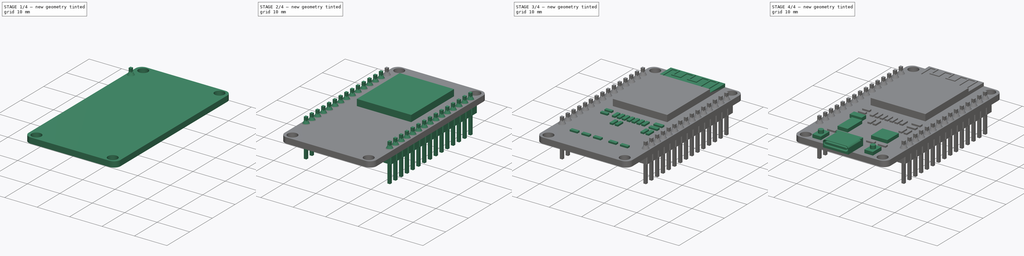
[diagram: build sequence overview — one tinted view per stage of 4, left to right]
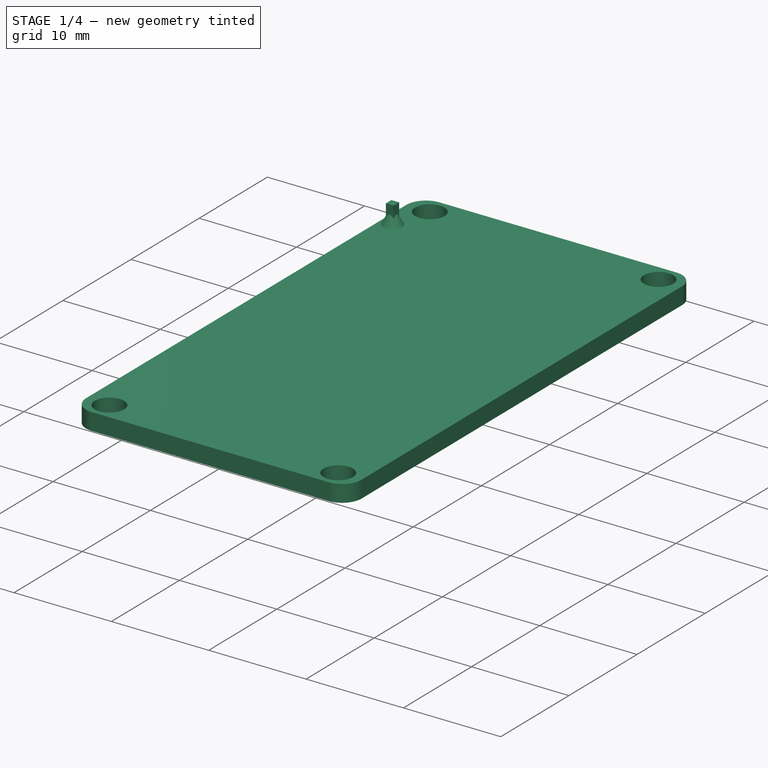
[diagram: stage 1 of 4 — iso view after this stage's code; geometry added in this stage tinted green]
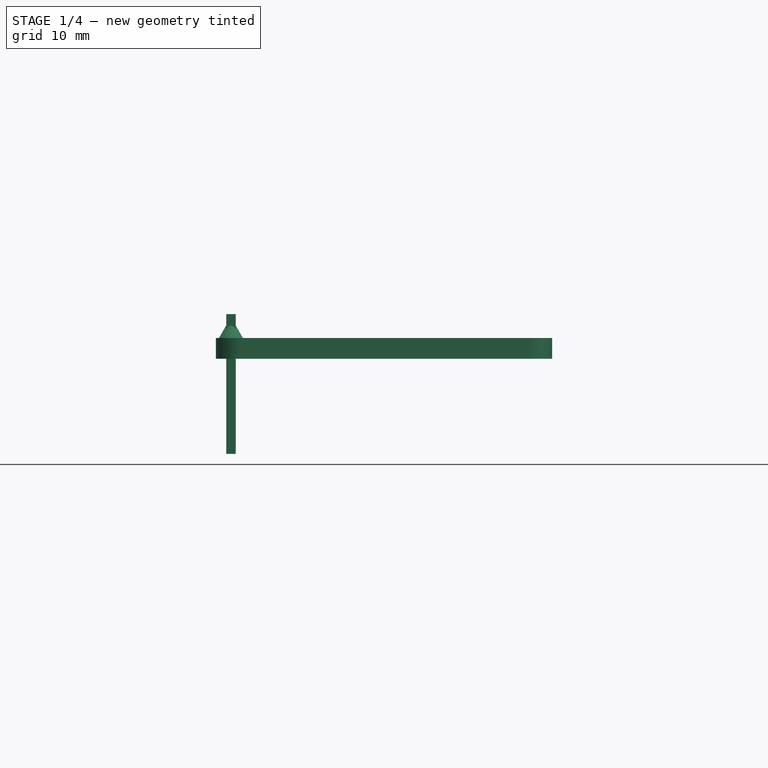
[diagram: stage 1 of 4 — front view after this stage's code; geometry added in this stage tinted green]
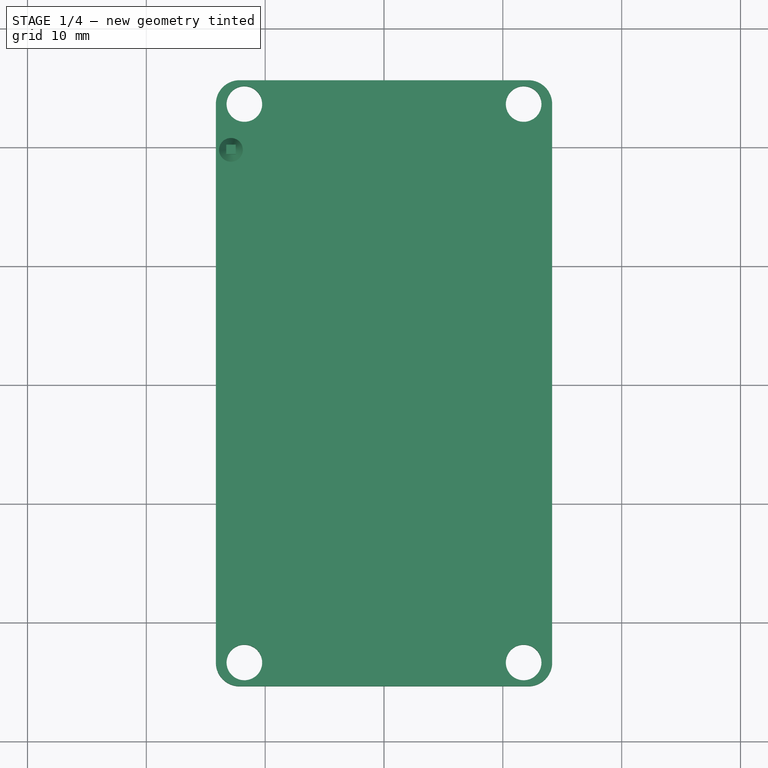
[diagram: stage 1 of 4 — top view after this stage's code; geometry added in this stage tinted green]
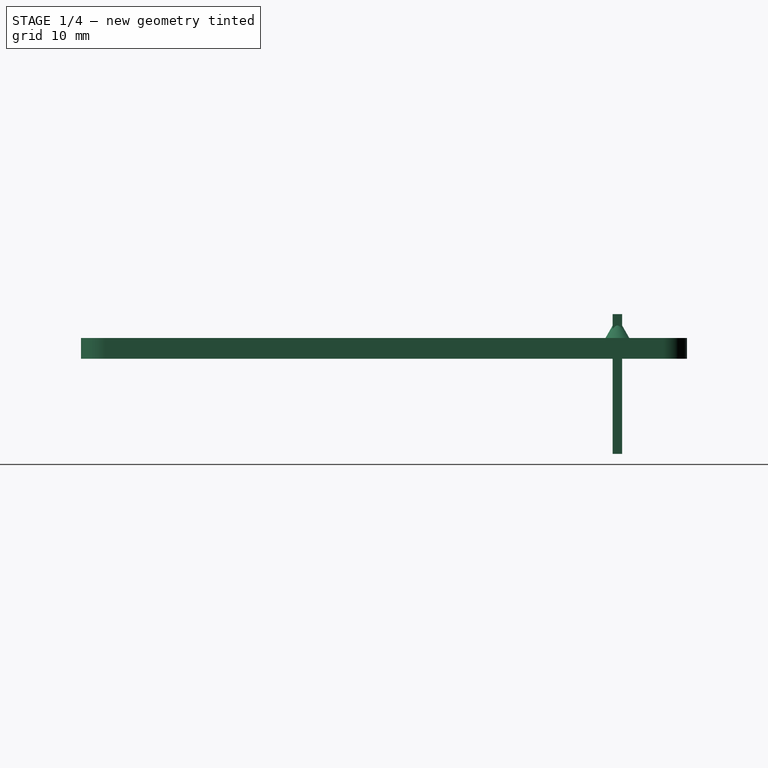
[diagram: stage 1 of 4 — right view after this stage's code; geometry added in this stage tinted green]
FCSTD DOCUMENT  (FreeCAD 1.0R39109 (Git))
Label: esp32
License: All rights reserved
LicenseURL: http://en.wikipedia.org/wiki/All_rights_reserved
objects: Sketcher::SketchObject×14, PartDesign::Pad×10, PartDesign::Pocket×2, Image::ImagePlane×1, PartDesign::Plane×1, PartDesign::Line×1, PartDesign::Revolution×1, PartDesign::LinearPattern×1, PartDesign::Mirrored×1, PartDesign::MultiTransform×1, PartDesign::Body×1
note: 76 computed .brp shape members not serialized (recipe doc carries the construction recipe); baked Part::Feature solids carry a one-line shape summary decoded from their .brp

FEATURE [Sketcher::SketchObject] Sketch
  ArcFitTolerance = 1e-06
  AttachmentSupport = -> [XY_Plane]
  FullyConstrained = true
  MakeInternals = false
  MapMode = 5
  sketch-geometry (10):
    g0: LineSegment StartX=-14.15 StartY=23.5 StartZ=0 EndX=-14.15 EndY=-23.5 EndZ=0
    g1: LineSegment StartX=-12.15 StartY=-25.5 StartZ=0 EndX=12.15 EndY=-25.5 EndZ=0
    g2: LineSegment StartX=14.15 StartY=-23.5 StartZ=0 EndX=14.15 EndY=23.5 EndZ=0
    g3: LineSegment StartX=12.15 StartY=25.5 StartZ=0 EndX=-12.15 EndY=25.5 EndZ=0
    g4: ArcOfCircle CenterX=-12.15 CenterY=23.5 CenterZ=0 NormalX=0 NormalY=0 NormalZ=1 AngleXU=0 Radius=2 StartAngle=1.5708 EndAngle=3.14159
    g5: ArcOfCircle CenterX=-12.15 CenterY=-23.5 CenterZ=0 NormalX=0 NormalY=0 NormalZ=1 AngleXU=0 Radius=2 StartAngle=3.14159 EndAngle=4.71239
    g6: ArcOfCircle CenterX=12.15 CenterY=-23.5 CenterZ=0 NormalX=0 NormalY=0 NormalZ=1 AngleXU=0 Radius=2 StartAngle=4.71239 EndAngle=6.28319
    g7: ArcOfCircle CenterX=12.15 CenterY=23.5 CenterZ=0 NormalX=0 NormalY=0 NormalZ=1 AngleXU=0 Radius=2 StartAngle=0 EndAngle=1.5708
    g8: GeomPoint [constr] X=-14.15 Y=25.5 Z=0
    g9: GeomPoint [constr] X=14.15 Y=-25.5 Z=0
  constraints (23):
    c: Tangent(g0,g4) = -1.5708
    c: Tangent(g0,g5) = -1.5708
    c: Tangent(g1,g5) = -1.5708
    c: Tangent(g1,g6) = -1.5708
    c: Tangent(g2,g6) = -1.5708
    c: Tangent(g2,g7) = -1.5708
    c: Tangent(g3,g7) = -1.5708
    c: Tangent(g3,g4) = -1.5708
    c: Vertical(g0)
    c: Vertical(g2)
    c: Horizontal(g1)
    c: Horizontal(g3)
    c: Equal(g4,g5)
    c: Equal(g5,g6)
    c: Equal(g6,g7)
    c: PointOnObject(g8,g0)
    c: PointOnObject(g8,g3)
    c: PointOnObject(g9,g1)
    c: PointOnObject(g9,g2)
    c: Symmetric(g4,g6,g-1)
    c: DistanceY(g1,g3) = 51
    c: DistanceX(g0,g2) = 28.3
    c: Radius(g7) = 2
FEATURE [PartDesign::Pad] Pad  label="PCBPad"
  Direction = (0,0,1)
  Length = 1.75
  Length2 = 10
  Profile = -> Sketch
  ReferenceAxis = -> Sketch [N_Axis]
  Refine = true
  Suppressed = false
  Type = 0
FEATURE [Image::ImagePlane] Esp32Drawing
  Placement = pos=(2.65,-1.75,0) rot=(0,0,1;0rad)
  XSize = 119.046
  YSize = 54.918
  expr: XSize = 198.41 * 0.6 mm
  expr: YSize = 91.53 * 0.6 mm
FEATURE [Sketcher::SketchObject] Sketch001
  ArcFitTolerance = 1e-06
  AttachmentSupport = -> [Pad]
  FullyConstrained = true
  MakeInternals = false
  MapMode = 5
  Placement = pos=(0,0,1.75) rot=(0,0,1;0rad)
  sketch-geometry (4):
    g0: Circle CenterX=-11.75 CenterY=23.5 CenterZ=0 NormalX=0 NormalY=0 NormalZ=1 AngleXU=0 Radius=1.5
    g1: Circle CenterX=11.75 CenterY=23.5 CenterZ=0 NormalX=0 NormalY=0 NormalZ=1 AngleXU=0 Radius=1.5
    g2: Circle CenterX=-11.75 CenterY=-23.5 CenterZ=0 NormalX=0 NormalY=0 NormalZ=1 AngleXU=0 Radius=1.5
    g3: Circle CenterX=11.75 CenterY=-23.5 CenterZ=0 NormalX=0 NormalY=0 NormalZ=1 AngleXU=0 Radius=1.5
  constraints (10):
    c: Equal(g0,g1)
    c: Equal(g1,g2)
    c: Equal(g2,g3)
    c: Radius(g3) = 1.5
    c: Vertical(g2,g0)
    c: Horizontal(g1,g0)
    c: DistanceX(g2,g-1) = 11.75
    c: DistanceY(g2,g-1) = 23.5
    c: Symmetric(g2,g3,g-2)
    c: Symmetric(g1,g3,g-1)
FEATURE [PartDesign::Pocket] Pocket  label="ScrewPockets"
  BaseFeature = -> Pad
  Direction = (0,0,-1)
  Length = 5
  Length2 = 5
  Profile = -> Sketch001
  ReferenceAxis = -> Sketch001 [N_Axis]
  Refine = true
  Suppressed = false
  Type = 2
FEATURE [Sketcher::SketchObject] Sketch002
  ArcFitTolerance = 1e-06
  AttachmentSupport = -> [Pocket]
  ExternalGeometry = -> [Pocket]
  FullyConstrained = true
  MakeInternals = false
  MapMode = 5
  Placement = pos=(0,0,1.75) rot=(0,0,1;0rad)
  sketch-geometry (26):
    g0: LineSegment [constr] StartX=-14.15 StartY=20.91 StartZ=0 EndX=-14.15 EndY=18.37 EndZ=0
    g1: LineSegment [constr] StartX=-14.15 StartY=18.37 StartZ=0 EndX=-11.61 EndY=18.37 EndZ=0
    g2: LineSegment [constr] StartX=-11.61 StartY=18.37 StartZ=0 EndX=-11.61 EndY=20.91 EndZ=0
    g3: LineSegment [constr] StartX=-11.61 StartY=20.91 StartZ=0 EndX=-14.15 EndY=20.91 EndZ=0
    g4: GeomPoint [constr] X=-12.88 Y=19.64 Z=0
    g5: LineSegment StartX=-13.28 StartY=20.04 StartZ=0 EndX=-13.28 EndY=19.24 EndZ=0
    g6: LineSegment StartX=-13.28 StartY=19.24 StartZ=0 EndX=-12.48 EndY=19.24 EndZ=0
    g7: LineSegment StartX=-12.48 StartY=19.24 StartZ=0 EndX=-12.48 EndY=20.04 EndZ=0
    g8: LineSegment StartX=-12.48 StartY=20.04 StartZ=0 EndX=-13.28 EndY=20.04 EndZ=0
    g9: GeomPoint [constr] X=-12.88 Y=19.64 Z=0
    g10: LineSegment [constr] StartX=-11.61 StartY=25.5 StartZ=0 EndX=-11.61 EndY=20.91 EndZ=0
    g11: LineSegment [constr] StartX=-11.61 StartY=18.37 StartZ=0 EndX=-11.61 EndY=15.83 EndZ=0
    g12: LineSegment [constr] StartX=-11.61 StartY=15.83 StartZ=0 EndX=-11.61 EndY=13.29 EndZ=0
    g13: LineSegment [constr] StartX=-11.61 StartY=13.29 StartZ=0 EndX=-11.61 EndY=10.75 EndZ=0
    g14: LineSegment [constr] StartX=-11.61 StartY=10.75 StartZ=0 EndX=-11.61 EndY=8.21 EndZ=0
    g15: LineSegment [constr] StartX=-11.61 StartY=8.21 StartZ=0 EndX=-11.61 EndY=5.67 EndZ=0
    g16: LineSegment [constr] StartX=-11.61 StartY=5.67 StartZ=0 EndX=-11.61 EndY=3.13 EndZ=0
    g17: LineSegment [constr] StartX=-11.61 StartY=3.13 StartZ=0 EndX=-11.61 EndY=0.59 EndZ=0
    g18: LineSegment [constr] StartX=-11.61 StartY=0.59 StartZ=0 EndX=-11.61 EndY=-1.95 EndZ=0
    g19: LineSegment [constr] StartX=-11.61 StartY=-1.95 StartZ=0 EndX=-11.61 EndY=-4.49 EndZ=0
    g20: LineSegment [constr] StartX=-11.61 StartY=-4.49 StartZ=0 EndX=-11.61 EndY=-7.03 EndZ=0
    g21: LineSegment [constr] StartX=-11.61 StartY=-7.03 StartZ=0 EndX=-11.61 EndY=-9.57 EndZ=0
    g22: LineSegment [constr] StartX=-11.61 StartY=-9.57 StartZ=0 EndX=-11.61 EndY=-12.11 EndZ=0
    g23: LineSegment [constr] StartX=-11.61 StartY=-12.11 StartZ=0 EndX=-11.61 EndY=-14.65 EndZ=0
    g24: LineSegment [constr] StartX=-11.61 StartY=-14.65 StartZ=0 EndX=-11.61 EndY=-17.19 EndZ=0
    g25: LineSegment [constr] StartX=-11.61 StartY=-17.19 StartZ=0 EndX=-11.61 EndY=-19.73 EndZ=0
  constraints (73):
    c: Coincident(g0,g1)
    c: Coincident(g1,g2)
    c: Coincident(g2,g3)
    c: Coincident(g3,g0)
    c: Vertical(g0)
    c: Vertical(g2)
    c: Horizontal(g1)
    c: Horizontal(g3)
    c: Symmetric(g2,g0,g4)
    c: Coincident(g5,g6)
    c: Coincident(g6,g7)
    c: Coincident(g7,g8)
    c: Coincident(g8,g5)
    c: Vertical(g5)
    c: Vertical(g7)
    c: Horizontal(g6)
    c: Horizontal(g8)
    c: Symmetric(g7,g5,g9)
    c: Coincident(g9,g4)
    c: Equal(g7,g8)
    c: Equal(g2,g3)
    c: DistanceY(g2,g2) = 2.54
    c: DistanceY(g7,g7) = 0.8
    c: PointOnObject(g0,g-3)
    c: PointOnObject(g10,g-4)
    c: Coincident(g10,g2)
    c: Vertical(g10)
    c: Coincident(g1,g11)
    c: Coincident(g11,g12)
    c: Vertical(g12)
    c: Coincident(g12,g13)
    c: Vertical(g13)
    c: Coincident(g13,g14)
    c: Vertical(g14)
    c: Coincident(g14,g15)
    c: Coincident(g15,g16)
    c: Vertical(g16)
    c: Coincident(g16,g17)
    c: Vertical(g17)
    c: Coincident(g17,g18)
    c: Vertical(g18)
    c: Coincident(g18,g19)
    c: Vertical(g19)
    c: Coincident(g19,g20)
    c: Vertical(g20)
    c: Coincident(g20,g21)
    c: Coincident(g21,g22)
    c: Coincident(g22,g23)
    c: Coincident(g23,g24)
    c: Vertical(g24)
    c: Coincident(g24,g25)
    c: Vertical(g25)
    c: Vertical(g23)
    c: Vertical(g22)
    c: Vertical(g21)
    c: Vertical(g15)
    c: Vertical(g11)
    c: Equal(g11,g12)
    c: Equal(g12,g13)
    c: Equal(g13,g14)
    c: Equal(g14,g15)
    c: Equal(g15,g16)
    c: Equal(g16,g17)
    c: Equal(g17,g18)
    c: Equal(g18,g19)
    c: Equal(g19,g20)
    c: Equal(g20,g21)
    c: Equal(g21,g22)
    c: Equal(g22,g23)
    c: Equal(g23,g24)
    c: Equal(g24,g25)
    c: Equal(g11,g2)
    c: DistanceY(g10,g10) = 4.59
FEATURE [PartDesign::Pad] Pad001  label="ConnectorPad"
  BaseFeature = -> Pocket
  Direction = (0,0,1)
  Length = 2
  Length2 = 9.75
  Profile = -> Sketch002
  ReferenceAxis = -> Sketch002 [N_Axis]
  Refine = true
  Suppressed = false
  Type = 4
FEATURE [Sketcher::SketchObject] Sketch003
  ArcFitTolerance = 1e-06
  AttachmentSupport = -> [Pad001]
  ExternalGeometry = -> [Pad001]
  FullyConstrained = true
  MakeInternals = false
  MapMode = 5
  Placement = pos=(0,0,3.75) rot=(0,0,1;0rad)
  sketch-geometry (2):
    g0: LineSegment StartX=-13.28 StartY=20.04 StartZ=0 EndX=-12.48 EndY=19.24 EndZ=0
    g1: GeomPoint X=-12.88 Y=19.64 Z=0
  constraints (3):
    c: Coincident(g0,g-4)
    c: Coincident(g0,g-3)
    c: Symmetric(g0,g0,g1)
FEATURE [PartDesign::Plane] DatumPlane  label="SolderPlane"
  AttachmentSupport = -> [XZ_Plane,Sketch003]
  Length = 60
  MapMode = 53
  Placement = pos=(0,19.64,4.4e-15) rot=(1,0,0;1.5708rad)
  ResizeMode = 0
  Width = 60
FEATURE [Sketcher::SketchObject] Sketch004
  ArcFitTolerance = 1e-06
  AttachmentSupport = -> [DatumPlane]
  ExternalGeometry = -> [Pad001]
  FullyConstrained = true
  MakeInternals = false
  MapMode = 5
  Placement = pos=(0,19.64,4.4e-15) rot=(1,0,0;1.5708rad)
  sketch-geometry (4):
    g0: LineSegment StartX=-11.88 StartY=1.75 StartZ=0 EndX=-12.88 EndY=1.75 EndZ=0
    g1: LineSegment StartX=-11.88 StartY=1.75 StartZ=0 EndX=-12.88 EndY=3.5 EndZ=0
    g2: LineSegment StartX=-12.88 StartY=3.5 StartZ=0 EndX=-12.88 EndY=1.75 EndZ=0
    g3: GeomPoint X=-12.88 Y=3.75 Z=0
  constraints (10):
    c: Horizontal(g0)
    c: Coincident(g0,g1)
    c: Coincident(g1,g2)
    c: Coincident(g2,g0)
    c: Vertical(g2)
    c: Horizontal(g0,g-4)
    c: Symmetric(g-3,g-3,g3)
    c: Vertical(g3,g1)
    c: DistanceY(g1,g3) = 0.25
    c: DistanceX(g0,g0) = 1
FEATURE [PartDesign::Line] DatumLine  label="SolderRevAxis"
  AttacherType = Attacher::AttachEngineLine
  AttachmentSupport = -> [Sketch004]
  Length = 20
  MapMode = 29
  Placement = pos=(-12.88,19.64,4.4e-15) rot=(0,1,0;3.14159rad)
  ResizeMode = 0
FEATURE [PartDesign::Revolution] Revolution  label="SolderRevolution"
  Angle = 360
  Angle2 = 60
  Axis = (0,0,-1)
  Base = (-12.88,19.64,0)
  BaseFeature = -> Pad001
  Profile = -> Sketch004
  ReferenceAxis = -> DatumLine
  Refine = true
  Suppressed = false
  Type = 0
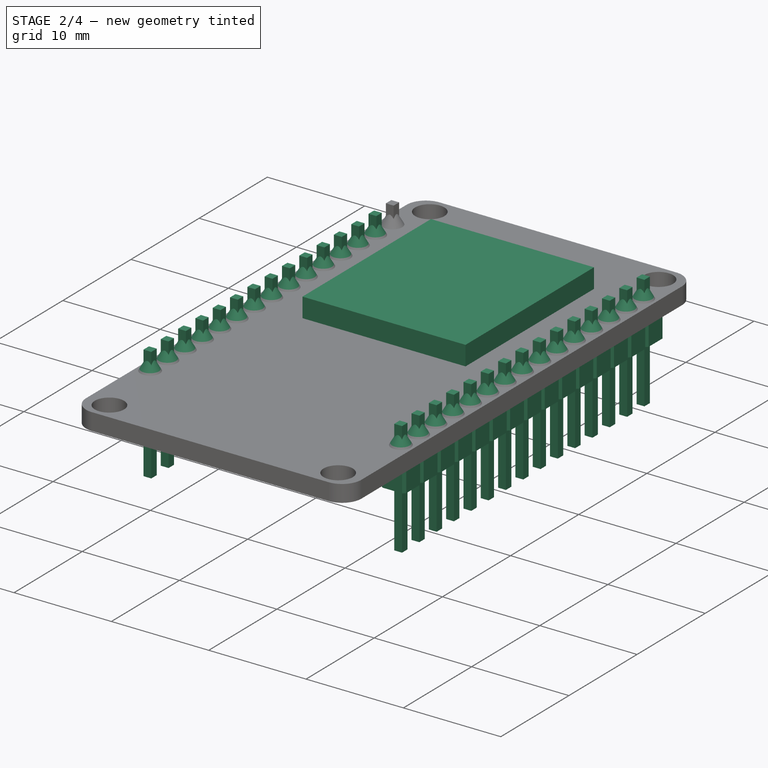
[diagram: stage 2 of 4 — iso view after this stage's code; geometry added in this stage tinted green]
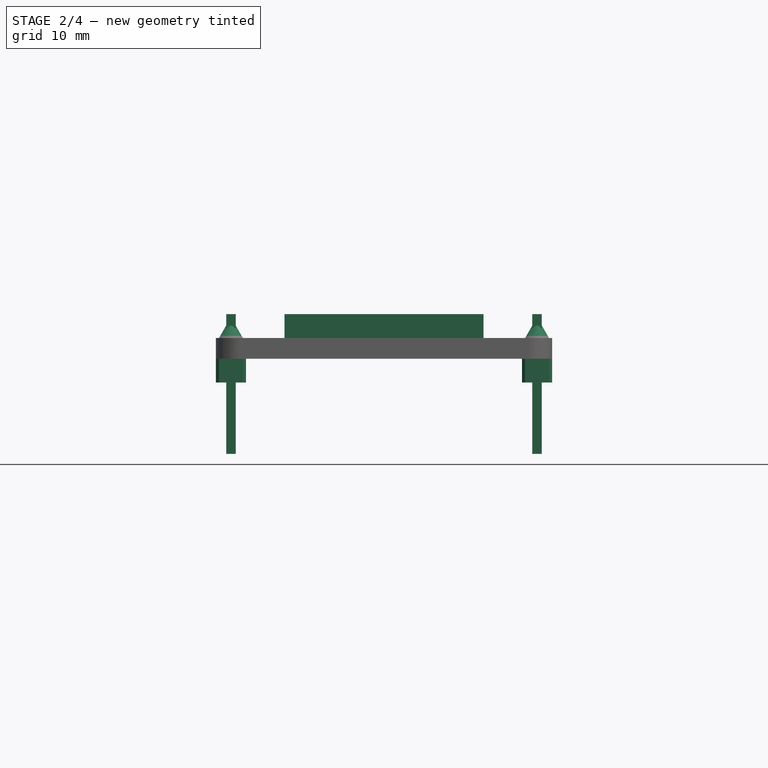
[diagram: stage 2 of 4 — front view after this stage's code; geometry added in this stage tinted green]
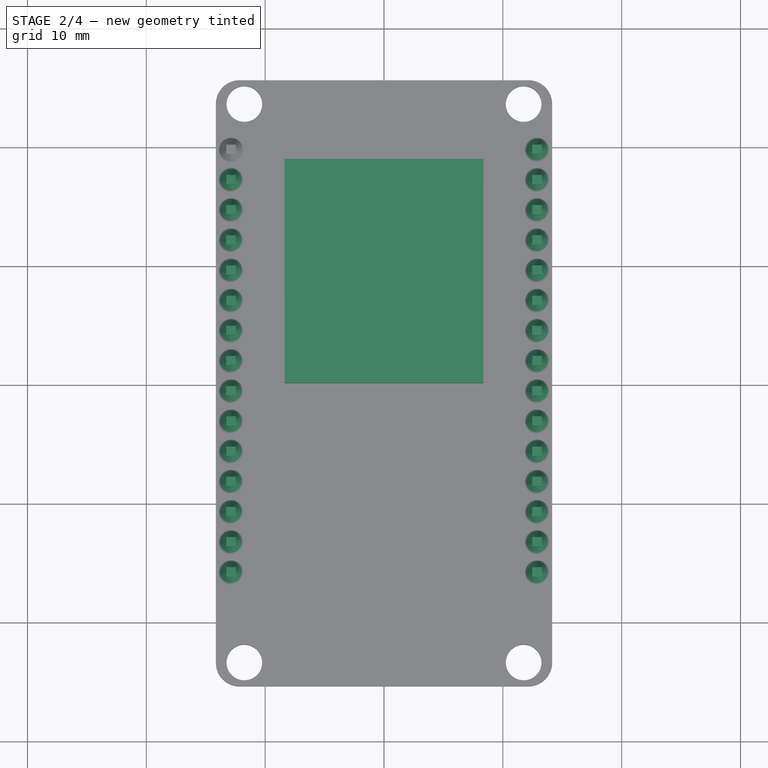
[diagram: stage 2 of 4 — top view after this stage's code; geometry added in this stage tinted green]
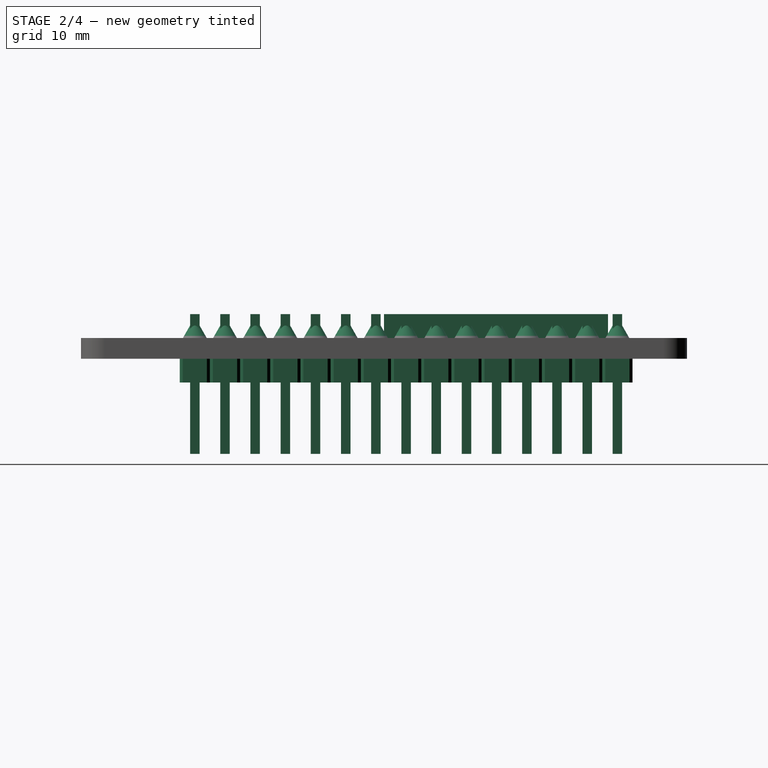
[diagram: stage 2 of 4 — right view after this stage's code; geometry added in this stage tinted green]
FEATURE [Sketcher::SketchObject] Sketch005
  ArcFitTolerance = 1e-06
  AttachmentSupport = -> [Revolution]
  ExternalGeometry = -> [Revolution]
  FullyConstrained = true
  MakeInternals = false
  MapMode = 5
  Placement = pos=(0,0,0) rot=(1,0,0;3.14159rad)
  sketch-geometry (16):
    g0: LineSegment [constr] StartX=-14.15 StartY=-18.37 StartZ=0 EndX=-14.15 EndY=-20.91 EndZ=0
    g1: LineSegment [constr] StartX=-14.15 StartY=-20.91 StartZ=0 EndX=-11.61 EndY=-20.91 EndZ=0
    g2: LineSegment [constr] StartX=-11.61 StartY=-20.91 StartZ=0 EndX=-11.61 EndY=-18.37 EndZ=0
    g3: LineSegment [constr] StartX=-11.61 StartY=-18.37 StartZ=0 EndX=-14.15 EndY=-18.37 EndZ=0
    g4: GeomPoint X=-12.88 Y=-19.24 Z=0
    g5: GeomPoint X=-12.48 Y=-19.64 Z=0
    g6: GeomPoint X=-11.61 Y=-19.64 Z=0
    g7: GeomPoint X=-12.88 Y=-18.37 Z=0
    g8: LineSegment StartX=-14.15 StartY=-18.62 StartZ=0 EndX=-14.15 EndY=-20.66 EndZ=0
    g9: LineSegment StartX=-14.15 StartY=-20.66 StartZ=0 EndX=-13.9 EndY=-20.91 EndZ=0
    g10: LineSegment StartX=-13.9 StartY=-20.91 StartZ=0 EndX=-11.86 EndY=-20.91 EndZ=0
    g11: LineSegment StartX=-11.86 StartY=-20.91 StartZ=0 EndX=-11.61 EndY=-20.66 EndZ=0
    g12: LineSegment StartX=-11.61 StartY=-20.66 StartZ=0 EndX=-11.61 EndY=-18.62 EndZ=0
    g13: LineSegment StartX=-11.61 StartY=-18.62 StartZ=0 EndX=-11.86 EndY=-18.37 EndZ=0
    g14: LineSegment StartX=-11.86 StartY=-18.37 StartZ=0 EndX=-13.9 EndY=-18.37 EndZ=0
    g15: LineSegment StartX=-13.9 StartY=-18.37 StartZ=0 EndX=-14.15 EndY=-18.62 EndZ=0
  constraints (40):
    c: Coincident(g0,g1)
    c: Coincident(g1,g2)
    c: Coincident(g2,g3)
    c: Coincident(g3,g0)
    c: Vertical(g0)
    c: Vertical(g2)
    c: Horizontal(g1)
    c: Horizontal(g3)
    c: Equal(g2,g3)
    c: Symmetric(g-4,g-4,g4)
    c: Symmetric(g2,g2,g6)
    c: Symmetric(g3,g3,g7)
    c: Vertical(g4,g7)
    c: Horizontal(g5,g6)
    c: DistanceY(g2,g2) = 2.54
    c: Symmetric(g-3,g-4,g5)
    c: PointOnObject(g8,g0)
    c: PointOnObject(g8,g0)
    c: Coincident(g8,g9)
    c: PointOnObject(g9,g1)
    c: Coincident(g9,g10)
    c: PointOnObject(g10,g1)
    c: Coincident(g10,g11)
    c: PointOnObject(g11,g2)
    c: Coincident(g11,g12)
    c: PointOnObject(g12,g2)
    c: Coincident(g12,g13)
    c: PointOnObject(g13,g3)
    c: Coincident(g13,g14)
    c: PointOnObject(g14,g3)
    c: Coincident(g14,g15)
    c: Coincident(g15,g8)
    c: Equal(g15,g13)
    c: Equal(g13,g9)
    c: Equal(g9,g11)
    c: Equal(g12,g10)
    c: Equal(g10,g8)
    c: Equal(g8,g14)
    c: DistanceX(g8,g14) = 0.25
    c: Angle(g8,g15) = 2.35619
FEATURE [PartDesign::Pad] Pad002  label="BaseConnectorPad"
  BaseFeature = -> Revolution
  Direction = (0,0,-1)
  Length = 2
  Length2 = 10
  Profile = -> Sketch005
  ReferenceAxis = -> Sketch005 [N_Axis]
  Refine = true
  Suppressed = false
  Type = 0
FEATURE [PartDesign::LinearPattern] LinearPattern
  Direction = -> Sketch002 [V_Axis]
  Length = 35.56
  Mode = 1
  Occurrences = 15
  Offset = 2.54
  Refine = true
  Reversed = true
  Suppressed = false
  TransformMode = 0
FEATURE [PartDesign::Mirrored] Mirrored
  MirrorPlane = -> Sketch002 [V_Axis]
  Refine = true
  Suppressed = false
  TransformMode = 0
FEATURE [PartDesign::MultiTransform] MultiTransform  label="ConnectorMultiTransform"
  BaseFeature = -> Pad002
  Originals = -> [Pad001,Revolution,Pad002]
  Refine = true
  Suppressed = false
  TransformMode = 0
  Transformations = -> [LinearPattern,Mirrored]
FEATURE [Sketcher::SketchObject] Sketch006
  ArcFitTolerance = 1e-06
  AttachmentSupport = -> [MultiTransform]
  FullyConstrained = true
  MakeInternals = false
  MapMode = 5
  Placement = pos=(0,0,1.75) rot=(0,0,1;0rad)
  sketch-geometry (4):
    g0: LineSegment StartX=-8.375 StartY=18.85 StartZ=0 EndX=-8.375 EndY=0 EndZ=0
    g1: LineSegment StartX=-8.375 StartY=0 StartZ=0 EndX=8.375 EndY=0 EndZ=0
    g2: LineSegment StartX=8.375 StartY=0 StartZ=0 EndX=8.375 EndY=18.85 EndZ=0
    g3: LineSegment StartX=8.375 StartY=18.85 StartZ=0 EndX=-8.375 EndY=18.85 EndZ=0
  constraints (11):
    c: Coincident(g0,g1)
    c: Coincident(g1,g2)
    c: Coincident(g2,g3)
    c: Coincident(g3,g0)
    c: Vertical(g0)
    c: Vertical(g2)
    c: Horizontal(g1)
    c: Horizontal(g3)
    c: Symmetric(g1,g0,g-1)
    c: DistanceY(g2,g2) = 18.85
    c: DistanceX(g3,g3) = 16.75
FEATURE [PartDesign::Pad] Pad003  label="ElectronicsPad"
  BaseFeature = -> MultiTransform
  Direction = (0,0,1)
  Length = 2
  Length2 = 10
  Profile = -> Sketch006
  ReferenceAxis = -> Sketch006 [N_Axis]
  Refine = true
  Suppressed = false
  Type = 0
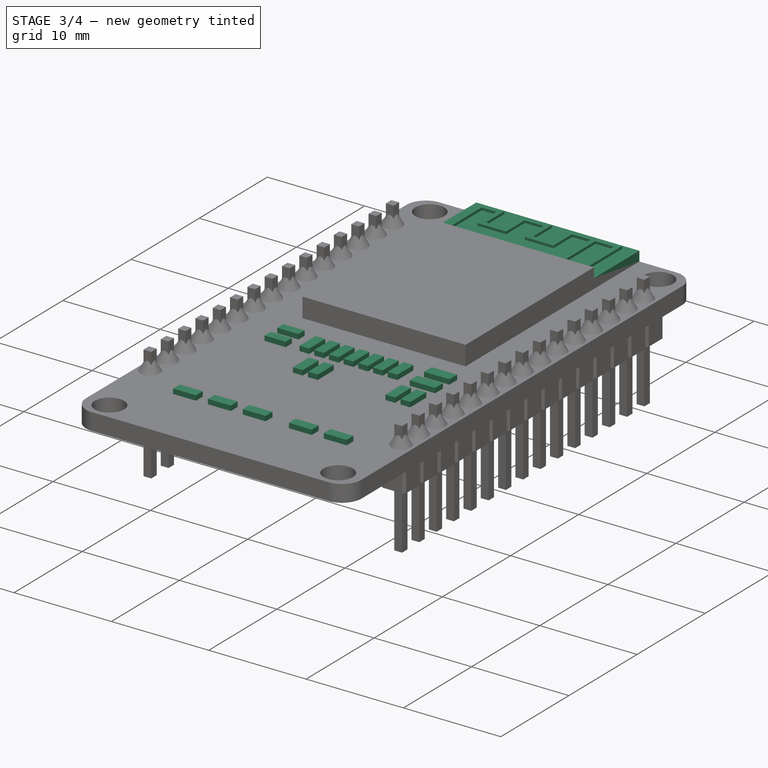
[diagram: stage 3 of 4 — iso view after this stage's code; geometry added in this stage tinted green]
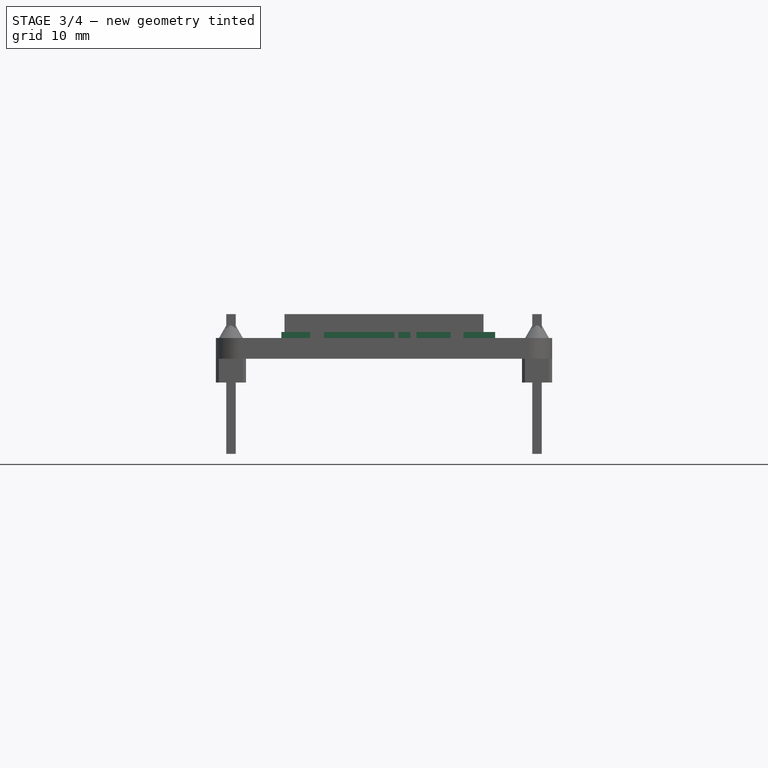
[diagram: stage 3 of 4 — front view after this stage's code; geometry added in this stage tinted green]
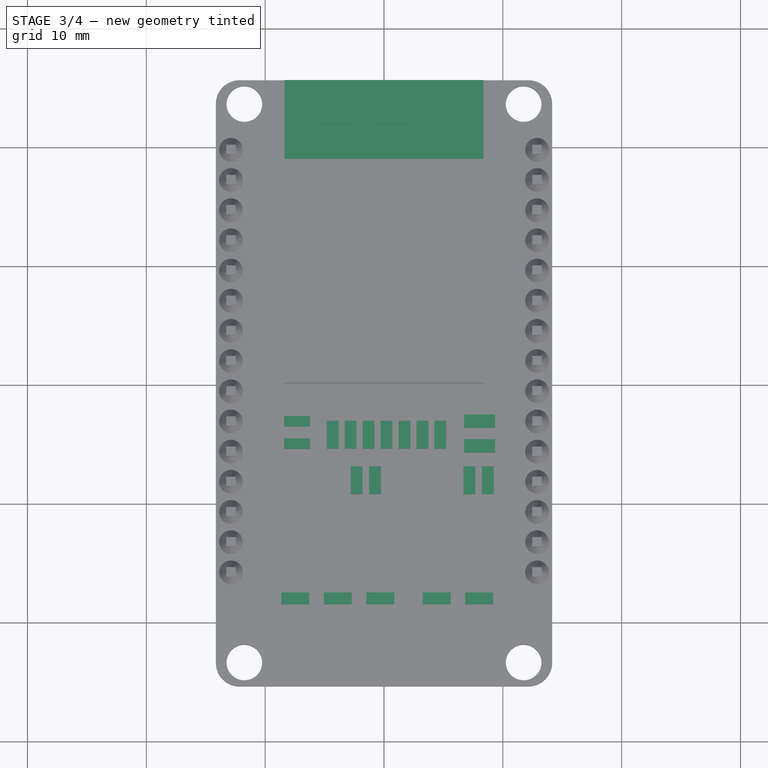
[diagram: stage 3 of 4 — top view after this stage's code; geometry added in this stage tinted green]
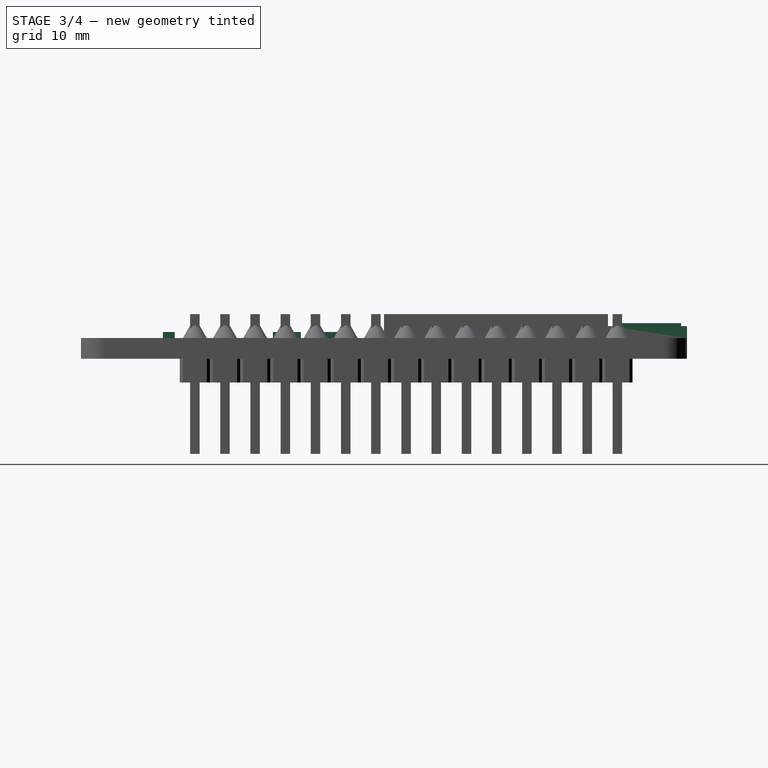
[diagram: stage 3 of 4 — right view after this stage's code; geometry added in this stage tinted green]
FEATURE [Sketcher::SketchObject] Sketch007
  ArcFitTolerance = 1e-06
  AttachmentSupport = -> [Pad003]
  ExternalGeometry = -> [Pad003]
  FullyConstrained = true
  MakeInternals = false
  MapMode = 5
  Placement = pos=(0,0,1.75) rot=(0,0,1;0rad)
  sketch-geometry (4):
    g0: LineSegment StartX=-8.375 StartY=25.5 StartZ=0 EndX=-8.375 EndY=18.85 EndZ=0
    g1: LineSegment StartX=-8.375 StartY=18.85 StartZ=0 EndX=8.375 EndY=18.85 EndZ=0
    g2: LineSegment StartX=8.375 StartY=18.85 StartZ=0 EndX=8.375 EndY=25.5 EndZ=0
    g3: LineSegment StartX=8.375 StartY=25.5 StartZ=0 EndX=-8.375 EndY=25.5 EndZ=0
  constraints (10):
    c: Coincident(g0,g1)
    c: Coincident(g1,g2)
    c: Coincident(g2,g3)
    c: Coincident(g3,g0)
    c: Vertical(g0)
    c: Vertical(g2)
    c: Horizontal(g3)
    c: PointOnObject(g0,g-4)
    c: Coincident(g1,g-3)
    c: Coincident(g-3,g0)
FEATURE [PartDesign::Pad] Pad004  label="Electronics2Pad"
  BaseFeature = -> Pad003
  Direction = (0,0,1)
  Length = 1
  Length2 = 10
  Profile = -> Sketch007
  ReferenceAxis = -> Sketch007 [N_Axis]
  Refine = true
  Suppressed = false
  Type = 0
FEATURE [Sketcher::SketchObject] Sketch008
  ArcFitTolerance = 1e-06
  AttachmentSupport = -> [Pad004]
  ExternalGeometry = -> [Pad004]
  FullyConstrained = true
  MakeInternals = false
  MapMode = 5
  Placement = pos=(0,0,1.75) rot=(0,0,1;0rad)
  sketch-geometry (38):
    g0: LineSegment StartX=-7.625 StartY=19.44 StartZ=0 EndX=-7.125 EndY=19.44 EndZ=0
    g1: LineSegment StartX=-7.125 StartY=19.44 StartZ=0 EndX=-7.125 EndY=24.5 EndZ=0
    g2: LineSegment StartX=-7.125 StartY=24.5 StartZ=0 EndX=-5.625 EndY=24.5 EndZ=0
    g3: LineSegment StartX=-5.625 StartY=24.5 StartZ=0 EndX=-5.625 EndY=21.76 EndZ=0
    g4: LineSegment StartX=-5.625 StartY=21.76 StartZ=0 EndX=-2.695 EndY=21.76 EndZ=0
    g5: LineSegment StartX=-2.695 StartY=21.76 StartZ=0 EndX=-2.695 EndY=24.5 EndZ=0
    g6: LineSegment StartX=-2.695 StartY=24.5 StartZ=0 EndX=-0.765 EndY=24.5 EndZ=0
    g7: LineSegment StartX=-0.765 StartY=24.5 StartZ=0 EndX=-0.765 EndY=21.76 EndZ=0
    g8: LineSegment StartX=-0.765 StartY=21.76 StartZ=0 EndX=2.165 EndY=21.76 EndZ=0
    g9: LineSegment StartX=2.165 StartY=21.76 StartZ=0 EndX=2.165 EndY=24.5 EndZ=0
    g10: LineSegment StartX=2.165 StartY=24.5 StartZ=0 EndX=4.065 EndY=24.5 EndZ=0
    g11: LineSegment StartX=4.065 StartY=24.5 StartZ=0 EndX=4.065 EndY=19.44 EndZ=0
    g12: LineSegment StartX=4.065 StartY=19.44 StartZ=0 EndX=4.565 EndY=19.44 EndZ=0
    g13: LineSegment StartX=4.565 StartY=19.44 StartZ=0 EndX=4.565 EndY=24.5 EndZ=0
    g14: LineSegment StartX=4.565 StartY=24.5 StartZ=0 EndX=6.465 EndY=24.5 EndZ=0
    g15: LineSegment StartX=6.465 StartY=24.5 StartZ=0 EndX=6.465 EndY=19.44 EndZ=0
    g16: LineSegment StartX=6.465 StartY=19.44 StartZ=0 EndX=6.965 EndY=19.44 EndZ=0
    g17: LineSegment StartX=6.965 StartY=19.44 StartZ=0 EndX=6.965 EndY=25 EndZ=0
    g18: LineSegment StartX=6.965 StartY=25 StartZ=0 EndX=1.665 EndY=25 EndZ=0
    g19: LineSegment StartX=1.665 StartY=25 StartZ=0 EndX=1.665 EndY=22.26 EndZ=0
    g20: LineSegment StartX=1.665 StartY=22.26 StartZ=0 EndX=-0.265 EndY=22.26 EndZ=0
    g21: LineSegment StartX=-0.265 StartY=22.26 StartZ=0 EndX=-0.265 EndY=25 EndZ=0
    g22: LineSegment StartX=-0.265 StartY=25 StartZ=0 EndX=-3.195 EndY=25 EndZ=0
    g23: LineSegment StartX=-3.195 StartY=25 StartZ=0 EndX=-3.195 EndY=22.26 EndZ=0
    g24: LineSegment StartX=-3.195 StartY=22.26 StartZ=0 EndX=-5.125 EndY=22.26 EndZ=0
    g25: LineSegment StartX=-5.125 StartY=22.26 StartZ=0 EndX=-5.125 EndY=25 EndZ=0
    g26: LineSegment StartX=-5.125 StartY=25 StartZ=0 EndX=-7.625 EndY=25 EndZ=0
    g27: LineSegment StartX=-7.625 StartY=25 StartZ=0 EndX=-7.625 EndY=19.44 EndZ=0
    g28: LineSegment [constr] StartX=-7.125 StartY=24.5 StartZ=0 EndX=-7.625 EndY=24.5 EndZ=0
    g29: LineSegment [constr] StartX=-5.625 StartY=24.5 StartZ=0 EndX=-5.125 EndY=24.5 EndZ=0
    g30: LineSegment [constr] StartX=-2.695 StartY=24.5 StartZ=0 EndX=-3.195 EndY=24.5 EndZ=0
    g31: LineSegment [constr] StartX=-0.765 StartY=24.5 StartZ=0 EndX=-0.265 EndY=24.5 EndZ=0
    g32: LineSegment [constr] StartX=2.165 StartY=24.5 StartZ=0 EndX=1.665 EndY=24.5 EndZ=0
    g33: LineSegment [constr] StartX=4.065 StartY=24.5 StartZ=0 EndX=4.565 EndY=24.5 EndZ=0
    g34: LineSegment [constr] StartX=6.465 StartY=24.5 StartZ=0 EndX=6.965 EndY=24.5 EndZ=0
    g35: LineSegment [constr] StartX=-5.125 StartY=22.26 StartZ=0 EndX=-5.125 EndY=21.76 EndZ=0
    g36: LineSegment [constr] StartX=-0.265 StartY=22.26 StartZ=0 EndX=-0.265 EndY=21.76 EndZ=0
    g37: LineSegment [constr] StartX=2.165 StartY=24.5 StartZ=0 EndX=2.165 EndY=25 EndZ=0
  constraints (113):
    c: Coincident(g0,g1)
    c: Vertical(g1)
    c: Coincident(g1,g2)
    c: Horizontal(g2)
    c: Coincident(g2,g3)
    c: Vertical(g3)
    c: Coincident(g3,g4)
    c: Horizontal(g4)
    c: Coincident(g4,g5)
    c: Coincident(g5,g6)
    c: Horizontal(g6)
    c: Coincident(g6,g7)
    c: Vertical(g7)
    c: Coincident(g7,g8)
    c: Horizontal(g8)
    c: Coincident(g8,g9)
    c: Coincident(g9,g10)
    c: Horizontal(g10)
    c: Coincident(g10,g11)
    c: Vertical(g11)
    c: Coincident(g11,g12)
    c: Horizontal(g12)
    c: Coincident(g12,g13)
    c: Vertical(g13)
    c: Coincident(g13,g14)
    c: Horizontal(g14)
    c: Coincident(g14,g15)
    c: Vertical(g15)
    c: Coincident(g15,g16)
    c: Coincident(g16,g17)
    c: Vertical(g17)
    c: Coincident(g17,g18)
    c: Horizontal(g18)
    c: Coincident(g18,g19)
    c: Vertical(g19)
    c: Coincident(g19,g20)
    c: Horizontal(g20)
    c: Coincident(g20,g21)
    c: Vertical(g21)
    c: Coincident(g21,g22)
    c: Horizontal(g22)
    c: Coincident(g22,g23)
    c: Vertical(g23)
    c: Coincident(g23,g24)
    c: Horizontal(g24)
    c: Coincident(g24,g25)
    c: Coincident(g25,g26)
    c: Horizontal(g26)
    c: Coincident(g26,g27)
    c: Coincident(g27,g0)
    c: Vertical(g27)
    c: Horizontal(g0)
    c: Vertical(g5)
    c: Vertical(g25)
    c: Vertical(g9)
    c: Horizontal(g16)
    c: Horizontal(g10,g13)
    c: Horizontal(g5,g2)
    c: Coincident(g28,g1)
    c: PointOnObject(g28,g27)
    c: Horizontal(g28)
    c: Coincident(g29,g2)
    c: PointOnObject(g29,g25)
    c: Horizontal(g29)
    c: Coincident(g30,g5)
    c: PointOnObject(g30,g23)
    c: Coincident(g31,g6)
    c: PointOnObject(g31,g21)
    c: Horizontal(g31)
    c: Coincident(g32,g9)
    c: PointOnObject(g32,g19)
    c: Horizontal(g32)
    c: Coincident(g33,g10)
    c: Coincident(g33,g13)
    c: Coincident(g34,g14)
    c: PointOnObject(g34,g17)
    c: Horizontal(g34)
    c: Equal(g34,g33)
    c: Equal(g33,g32)
    c: Equal(g32,g31)
    c: Equal(g31,g30)
    c: Equal(g30,g29)
    c: Equal(g29,g28)
    c: Horizontal(g30)
    c: DistanceX(g-5,g26) = 0.75
    c: DistanceY(g-4,g0) = 0.59
    c: DistanceX(g28,g28) = 0.5
    c: Horizontal(g25,g22)
    c: Horizontal(g21,g18)
    c: Horizontal(g32,g31)
    c: Horizontal(g12,g15)
    c: Horizontal(g0,g11)
    c: Equal(g20,g6)
    c: DistanceX(g2,g2) = 1.5
    c: Coincident(g35,g24)
    c: PointOnObject(g35,g4)
    c: Coincident(g36,g20)
    c: PointOnObject(g36,g8)
    c: Vertical(g35)
    c: Vertical(g36)
    c: Equal(g36,g31)
    c: Horizontal(g4,g7)
    c: Horizontal(g23,g20)
    c: DistanceY(g3,g3) = 2.74
    c: Equal(g24,g20)
    c: DistanceX(g4,g4) = 2.93
    c: Coincident(g37,g9)
    c: PointOnObject(g37,g18)
    c: Vertical(g37)
    c: Equal(g32,g37)
    c: DistanceY(g26,g-5) = 0.5
    c: Equal(g10,g14)
    c: DistanceX(g17,g-5) = 1.41
FEATURE [PartDesign::Pad] Pad005  label="Electronics3Pad"
  BaseFeature = -> Pad004
  Direction = (0,0,1)
  Length = 1.25
  Length2 = 10
  Profile = -> Sketch008
  ReferenceAxis = -> Sketch008 [N_Axis]
  Refine = true
  Suppressed = false
  Type = 0
FEATURE [Sketcher::SketchObject] Sketch009
  ArcFitTolerance = 1e-06
  AttachmentSupport = -> [Pad005]
  FullyConstrained = true
  MakeInternals = false
  MapMode = 5
  Placement = pos=(0,0,1.75) rot=(0,0,1;0rad)
  sketch-geometry (93):
    g0: LineSegment StartX=-8.4 StartY=-2.77 StartZ=0 EndX=-8.4 EndY=-3.67 EndZ=0
    g1: LineSegment StartX=-8.4 StartY=-3.67 StartZ=0 EndX=-6.22 EndY=-3.67 EndZ=0
    g2: LineSegment StartX=-6.22 StartY=-3.67 StartZ=0 EndX=-6.22 EndY=-2.77 EndZ=0
    g3: LineSegment StartX=-6.22 StartY=-2.77 StartZ=0 EndX=-8.4 EndY=-2.77 EndZ=0
    g4: LineSegment StartX=-8.4 StartY=-4.64 StartZ=0 EndX=-8.4 EndY=-5.54 EndZ=0
    g5: LineSegment StartX=-8.4 StartY=-5.54 StartZ=0 EndX=-6.22 EndY=-5.54 EndZ=0
    g6: LineSegment StartX=-6.22 StartY=-5.54 StartZ=0 EndX=-6.22 EndY=-4.64 EndZ=0
    g7: LineSegment StartX=-6.22 StartY=-4.64 StartZ=0 EndX=-8.4 EndY=-4.64 EndZ=0
    g8: LineSegment StartX=-8.64 StartY=-17.61 StartZ=0 EndX=-8.64 EndY=-18.61 EndZ=0
    g9: LineSegment StartX=-8.64 StartY=-18.61 StartZ=0 EndX=-6.29 EndY=-18.61 EndZ=0
    g10: LineSegment StartX=-6.29 StartY=-18.61 StartZ=0 EndX=-6.29 EndY=-17.61 EndZ=0
    g11: LineSegment StartX=-6.29 StartY=-17.61 StartZ=0 EndX=-8.64 EndY=-17.61 EndZ=0
    g12: LineSegment StartX=-5.06 StartY=-17.61 StartZ=0 EndX=-5.06 EndY=-18.61 EndZ=0
    g13: LineSegment StartX=-5.06 StartY=-18.61 StartZ=0 EndX=-2.71 EndY=-18.61 EndZ=0
    g14: LineSegment StartX=-2.71 StartY=-18.61 StartZ=0 EndX=-2.71 EndY=-17.61 EndZ=0
    g15: LineSegment StartX=-2.71 StartY=-17.61 StartZ=0 EndX=-5.06 EndY=-17.61 EndZ=0
    g16: LineSegment StartX=-1.48 StartY=-17.61 StartZ=0 EndX=-1.48 EndY=-18.61 EndZ=0
    g17: LineSegment StartX=-1.48 StartY=-18.61 StartZ=0 EndX=0.87 EndY=-18.61 EndZ=0
    g18: LineSegment StartX=0.87 StartY=-18.61 StartZ=0 EndX=0.87 EndY=-17.61 EndZ=0
    g19: LineSegment StartX=0.87 StartY=-17.61 StartZ=0 EndX=-1.48 EndY=-17.61 EndZ=0
    g20: LineSegment StartX=3.26 StartY=-17.61 StartZ=0 EndX=3.26 EndY=-18.61 EndZ=0
    g21: LineSegment StartX=3.26 StartY=-18.61 StartZ=0 EndX=5.61 EndY=-18.61 EndZ=0
    g22: LineSegment StartX=5.61 StartY=-18.61 StartZ=0 EndX=5.61 EndY=-17.61 EndZ=0
    g23: LineSegment StartX=5.61 StartY=-17.61 StartZ=0 EndX=3.26 EndY=-17.61 EndZ=0
    g24: LineSegment StartX=6.84 StartY=-17.61 StartZ=0 EndX=6.84 EndY=-18.61 EndZ=0
    g25: LineSegment StartX=6.84 StartY=-18.61 StartZ=0 EndX=9.19 EndY=-18.61 EndZ=0
    g26: LineSegment StartX=9.19 StartY=-18.61 StartZ=0 EndX=9.19 EndY=-17.61 EndZ=0
    g27: LineSegment StartX=9.19 StartY=-17.61 StartZ=0 EndX=6.84 EndY=-17.61 EndZ=0
    g28: LineSegment StartX=-4.82 StartY=-3.17 StartZ=0 EndX=-4.82 EndY=-5.52 EndZ=0
    g29: LineSegment StartX=-4.82 StartY=-5.52 StartZ=0 EndX=-3.82 EndY=-5.52 EndZ=0
    g30: LineSegment StartX=-3.82 StartY=-5.52 StartZ=0 EndX=-3.82 EndY=-3.17 EndZ=0
    g31: LineSegment StartX=-3.82 StartY=-3.17 StartZ=0 EndX=-4.82 EndY=-3.17 EndZ=0
    g32: LineSegment StartX=-3.31 StartY=-3.17 StartZ=0 EndX=-3.31 EndY=-5.52 EndZ=0
    g33: LineSegment StartX=-3.31 StartY=-5.52 StartZ=0 EndX=-2.31 EndY=-5.52 EndZ=0
    g34: LineSegment StartX=-2.31 StartY=-5.52 StartZ=0 EndX=-2.31 EndY=-3.17 EndZ=0
    g35: LineSegment StartX=-2.31 StartY=-3.17 StartZ=0 EndX=-3.31 EndY=-3.17 EndZ=0
    g36: LineSegment StartX=-1.8 StartY=-3.17 StartZ=0 EndX=-1.8 EndY=-5.52 EndZ=0
    g37: LineSegment StartX=-1.8 StartY=-5.52 StartZ=0 EndX=-0.8 EndY=-5.52 EndZ=0
    g38: LineSegment StartX=-0.8 StartY=-5.52 StartZ=0 EndX=-0.8 EndY=-3.17 EndZ=0
    g39: LineSegment StartX=-0.8 StartY=-3.17 StartZ=0 EndX=-1.8 EndY=-3.17 EndZ=0
    g40: LineSegment StartX=-0.29 StartY=-3.17 StartZ=0 EndX=-0.29 EndY=-5.52 EndZ=0
    g41: LineSegment StartX=-0.29 StartY=-5.52 StartZ=0 EndX=0.71 EndY=-5.52 EndZ=0
    g42: LineSegment StartX=0.71 StartY=-5.52 StartZ=0 EndX=0.71 EndY=-3.17 EndZ=0
    g43: LineSegment StartX=0.71 StartY=-3.17 StartZ=0 EndX=-0.29 EndY=-3.17 EndZ=0
    g44: LineSegment StartX=1.22 StartY=-3.17 StartZ=0 EndX=1.22 EndY=-5.52 EndZ=0
    g45: LineSegment StartX=1.22 StartY=-5.52 StartZ=0 EndX=2.22 EndY=-5.52 EndZ=0
    g46: LineSegment StartX=2.22 StartY=-5.52 StartZ=0 EndX=2.22 EndY=-3.17 EndZ=0
    g47: LineSegment StartX=2.22 StartY=-3.17 StartZ=0 EndX=1.22 EndY=-3.17 EndZ=0
    g48: LineSegment StartX=2.73 StartY=-3.17 StartZ=0 EndX=2.73 EndY=-5.52 EndZ=0
    g49: LineSegment StartX=2.73 StartY=-5.52 StartZ=0 EndX=3.73 EndY=-5.52 EndZ=0
    g50: LineSegment StartX=3.73 StartY=-5.52 StartZ=0 EndX=3.73 EndY=-3.17 EndZ=0
    g51: LineSegment StartX=3.73 StartY=-3.17 StartZ=0 EndX=2.73 EndY=-3.17 EndZ=0
    g52: LineSegment StartX=4.24 StartY=-3.17 StartZ=0 EndX=4.24 EndY=-5.52 EndZ=0
    g53: LineSegment StartX=4.24 StartY=-5.52 StartZ=0 EndX=5.24 EndY=-5.52 EndZ=0
    g54: LineSegment StartX=5.24 StartY=-5.52 StartZ=0 EndX=5.24 EndY=-3.17 EndZ=0
    g55: LineSegment StartX=5.24 StartY=-3.17 StartZ=0 EndX=4.24 EndY=-3.17 EndZ=0
    g56: LineSegment StartX=6.74 StartY=-2.63 StartZ=0 EndX=6.74 EndY=-3.76 EndZ=0
    g57: LineSegment StartX=6.74 StartY=-3.76 StartZ=0 EndX=9.35 EndY=-3.76 EndZ=0
    g58: LineSegment StartX=9.35 StartY=-3.76 StartZ=0 EndX=9.35 EndY=-2.63 EndZ=0
    g59: LineSegment StartX=9.35 StartY=-2.63 StartZ=0 EndX=6.74 EndY=-2.63 EndZ=0
    g60: LineSegment StartX=6.74 StartY=-4.72 StartZ=0 EndX=6.74 EndY=-5.85 EndZ=0
    g61: LineSegment StartX=6.74 StartY=-5.85 StartZ=0 EndX=9.35 EndY=-5.85 EndZ=0
    g62: LineSegment StartX=9.35 StartY=-5.85 StartZ=0 EndX=9.35 EndY=-4.72 EndZ=0
    g63: LineSegment StartX=9.35 StartY=-4.72 StartZ=0 EndX=6.74 EndY=-4.72 EndZ=0
    g64: LineSegment StartX=6.68913 StartY=-7 StartZ=0 EndX=6.68913 EndY=-9.35 EndZ=0
    g65: LineSegment StartX=6.68913 StartY=-9.35 StartZ=0 EndX=7.68913 EndY=-9.35 EndZ=0
    g66: LineSegment StartX=7.68913 StartY=-9.35 StartZ=0 EndX=7.68913 EndY=-7 EndZ=0
    g67: LineSegment StartX=7.68913 StartY=-7 StartZ=0 EndX=6.68913 EndY=-7 EndZ=0
    g68: LineSegment StartX=8.23913 StartY=-7 StartZ=0 EndX=8.23913 EndY=-9.35 EndZ=0
    g69: LineSegment StartX=8.23913 StartY=-9.35 StartZ=0 EndX=9.23913 EndY=-9.35 EndZ=0
    g70: LineSegment StartX=9.23913 StartY=-9.35 StartZ=0 EndX=9.23913 EndY=-7 EndZ=0
    g71: LineSegment StartX=9.23913 StartY=-7 StartZ=0 EndX=8.23913 EndY=-7 EndZ=0
    g72: LineSegment StartX=-2.81 StartY=-7 StartZ=0 EndX=-2.81 EndY=-9.35 EndZ=0
    g73: LineSegment StartX=-2.81 StartY=-9.35 StartZ=0 EndX=-1.81 EndY=-9.35 EndZ=0
    g74: LineSegment StartX=-1.81 StartY=-9.35 StartZ=0 EndX=-1.81 EndY=-7 EndZ=0
    g75: LineSegment StartX=-1.81 StartY=-7 StartZ=0 EndX=-2.81 EndY=-7 EndZ=0
    g76: LineSegment StartX=-1.26 StartY=-7 StartZ=0 EndX=-1.26 EndY=-9.35 EndZ=0
    g77: LineSegment StartX=-1.26 StartY=-9.35 StartZ=0 EndX=-0.26 EndY=-9.35 EndZ=0
    g78: LineSegment StartX=-0.26 StartY=-9.35 StartZ=0 EndX=-0.26 EndY=-7 EndZ=0
    g79: LineSegment StartX=-0.26 StartY=-7 StartZ=0 EndX=-1.26 EndY=-7 EndZ=0
    g80: LineSegment [constr] StartX=-6.29 StartY=-17.61 StartZ=0 EndX=-5.06 EndY=-17.61 EndZ=0
    g81: LineSegment [constr] StartX=-2.71 StartY=-17.61 StartZ=0 EndX=-1.48 EndY=-17.61 EndZ=0
    g82: LineSegment [constr] StartX=0.87 StartY=-17.61 StartZ=0 EndX=3.26 EndY=-17.61 EndZ=0
    g83: LineSegment [constr] StartX=5.61 StartY=-17.61 StartZ=0 EndX=6.84 EndY=-17.61 EndZ=0
    g84: LineSegment [constr] StartX=-1.81 StartY=-7 StartZ=0 EndX=-1.26 EndY=-7 EndZ=0
    g85: LineSegment [constr] StartX=7.68913 StartY=-7 StartZ=0 EndX=8.23913 EndY=-7 EndZ=0
    g86: GeomPoint [constr] X=-2.81 Y=-5.52 Z=0
    g87: LineSegment [constr] StartX=-2.31 StartY=-3.17 StartZ=0 EndX=-1.8 EndY=-3.17 EndZ=0
    g88: LineSegment [constr] StartX=-0.8 StartY=-3.17 StartZ=0 EndX=-0.29 EndY=-3.17 EndZ=0
    g89: LineSegment [constr] StartX=0.71 StartY=-3.17 StartZ=0 EndX=1.22 EndY=-3.17 EndZ=0
    g90: LineSegment [constr] StartX=2.22 StartY=-3.17 StartZ=0 EndX=2.73 EndY=-3.17 EndZ=0
    g91: LineSegment [constr] StartX=3.73 StartY=-3.17 StartZ=0 EndX=4.24 EndY=-3.17 EndZ=0
    g92: LineSegment [constr] StartX=-3.82 StartY=-3.17 StartZ=0 EndX=-3.31 EndY=-3.17 EndZ=0
  constraints (265):
    c: Coincident(g0,g1)
    c: Coincident(g1,g2)
    c: Coincident(g2,g3)
    c: Coincident(g3,g0)
    c: Vertical(g0)
    c: Vertical(g2)
    c: Horizontal(g1)
    c: Horizontal(g3)
    c: Coincident(g4,g5)
    c: Coincident(g5,g6)
    c: Coincident(g6,g7)
    c: Coincident(g7,g4)
    c: Vertical(g4)
    c: Vertical(g6)
    c: Horizontal(g5)
    c: Horizontal(g7)
    c: Coincident(g8,g9)
    c: Coincident(g9,g10)
    c: Coincident(g10,g11)
    c: Coincident(g11,g8)
    c: Vertical(g8)
    c: Vertical(g10)
    c: Horizontal(g9)
    c: Horizontal(g11)
    c: Coincident(g12,g13)
    c: Coincident(g13,g14)
    c: Coincident(g14,g15)
    c: Coincident(g15,g12)
    c: Vertical(g12)
    c: Vertical(g14)
    c: Horizontal(g13)
    c: Horizontal(g15)
    c: Coincident(g16,g17)
    c: Coincident(g17,g18)
    c: Coincident(g18,g19)
    c: Coincident(g19,g16)
    c: Vertical(g16)
    c: Vertical(g18)
    c: Horizontal(g17)
    c: Horizontal(g19)
    c: Coincident(g20,g21)
    c: Coincident(g21,g22)
    c: Coincident(g22,g23)
    c: Coincident(g23,g20)
    c: Vertical(g20)
    c: Vertical(g22)
    c: Horizontal(g21)
    c: Horizontal(g23)
    c: Coincident(g24,g25)
    c: Coincident(g25,g26)
    c: Coincident(g26,g27)
    c: Coincident(g27,g24)
    c: Vertical(g24)
    c: Vertical(g26)
    c: Horizontal(g25)
    c: Horizontal(g27)
    c: Coincident(g28,g29)
    c: Coincident(g29,g30)
    c: Coincident(g30,g31)
    c: Coincident(g31,g28)
    c: Vertical(g28)
    c: Vertical(g30)
    c: Horizontal(g29)
    c: Horizontal(g31)
    c: Coincident(g32,g33)
    c: Coincident(g33,g34)
    c: Coincident(g34,g35)
    c: Coincident(g35,g32)
    c: Vertical(g32)
    c: Vertical(g34)
    c: Horizontal(g33)
    c: Horizontal(g35)
    c: Coincident(g36,g37)
    c: Coincident(g37,g38)
    c: Coincident(g38,g39)
    c: Coincident(g39,g36)
    c: Vertical(g36)
    c: Vertical(g38)
    c: Horizontal(g37)
    c: Horizontal(g39)
    c: Coincident(g40,g41)
    c: Coincident(g41,g42)
    c: Coincident(g42,g43)
    c: Coincident(g43,g40)
    c: Vertical(g40)
    c: Vertical(g42)
    c: Horizontal(g41)
    c: Horizontal(g43)
    c: Coincident(g44,g45)
    c: Coincident(g45,g46)
    c: Coincident(g46,g47)
    c: Coincident(g47,g44)
    c: Vertical(g44)
    c: Vertical(g46)
    c: Horizontal(g45)
    c: Horizontal(g47)
    c: Coincident(g48,g49)
    c: Coincident(g49,g50)
    c: Coincident(g50,g51)
    c: Coincident(g51,g48)
    c: Vertical(g48)
    c: Vertical(g50)
    c: Horizontal(g49)
    c: Horizontal(g51)
    c: Coincident(g52,g53)
    c: Coincident(g53,g54)
    c: Coincident(g54,g55)
    c: Coincident(g55,g52)
    c: Vertical(g52)
    c: Vertical(g54)
    c: Horizontal(g53)
    c: Horizontal(g55)
    c: Coincident(g56,g57)
    c: Coincident(g57,g58)
    c: Coincident(g58,g59)
    c: Coincident(g59,g56)
    c: Vertical(g56)
    c: Vertical(g58)
    c: Horizontal(g57)
    c: Horizontal(g59)
    c: Coincident(g60,g61)
    c: Coincident(g61,g62)
    c: Coincident(g62,g63)
    c: Coincident(g63,g60)
    c: Vertical(g60)
    c: Vertical(g62)
    c: Horizontal(g61)
    c: Horizontal(g63)
    c: Coincident(g64,g65)
    c: Coincident(g65,g66)
    c: Coincident(g66,g67)
    c: Coincident(g67,g64)
    c: Vertical(g64)
    c: Vertical(g66)
    c: Horizontal(g65)
    c: Horizontal(g67)
    c: Coincident(g68,g69)
    c: Coincident(g69,g70)
    c: Coincident(g70,g71)
    c: Coincident(g71,g68)
    c: Vertical(g68)
    c: Vertical(g70)
    c: Horizontal(g69)
    c: Horizontal(g71)
    c: Coincident(g72,g73)
    c: Coincident(g73,g74)
    c: Coincident(g74,g75)
    c: Coincident(g75,g72)
    c: Vertical(g72)
    c: Vertical(g74)
    c: Horizontal(g73)
    c: Horizontal(g75)
    c: Coincident(g76,g77)
    c: Coincident(g77,g78)
    c: Coincident(g78,g79)
    c: Coincident(g79,g76)
    c: Vertical(g76)
    c: Vertical(g78)
    c: Horizontal(g77)
    c: Horizontal(g79)
    c: Horizontal(g76,g74)
    c: Horizontal(g73,g76)
    c: Horizontal(g66,g68)
    c: Horizontal(g52,g48)
    c: Horizontal(g48,g44)
    c: Horizontal(g44,g40)
    c: Horizontal(g40,g36)
    c: Horizontal(g36,g32)
    c: Horizontal(g32,g28)
    c: Horizontal(g29,g33)
    c: Horizontal(g33,g37)
    c: Horizontal(g37,g41)
    c: Horizontal(g41,g45)
    c: Horizontal(g45,g49)
    c: Horizontal(g49,g53)
    c: Vertical(g1,g6)
    c: Vertical(g0,g4)
    c: Horizontal(g78,g64)
    c: Horizontal(g64,g68)
    c: Vertical(g60,g56)
    c: Vertical(g62,g57)
    c: Horizontal(g10,g12)
    c: Horizontal(g12,g16)
    c: Horizontal(g16,g20)
    c: Horizontal(g20,g24)
    c: Horizontal(g20,g24)
    c: Horizontal(g24,g16)
    c: Horizontal(g16,g12)
    c: Horizontal(g12,g9)
    c: Equal(g35,g39)
    c: Equal(g39,g43)
    c: Equal(g43,g47)
    c: Equal(g47,g51)
    c: Equal(g51,g55)
    c: Equal(g55,g31)
    c: Equal(g2,g6)
    c: Equal(g60,g56)
    c: Equal(g79,g75)
    c: Equal(g75,g67)
    c: Equal(g67,g71)
    c: Equal(g71,g45)
    c: Equal(g24,g77)
    c: DistanceY(g8,g8) = 1
    c: DistanceX(g11,g11) = 2.35
    c: Equal(g15,g11)
    c: Equal(g11,g19)
    c: Equal(g19,g23)
    c: Equal(g23,g27)
    c: Coincident(g80,g10)
    c: Coincident(g80,g12)
    c: Coincident(g81,g14)
    c: Coincident(g81,g16)
    c: Coincident(g82,g18)
    c: Coincident(g82,g20)
    c: Coincident(g83,g22)
    c: Coincident(g83,g24)
    c: Equal(g81,g80)
    c: DistanceX(g82,g82) = 2.39
    c: DistanceX(g83,g83) = 1.23
    c: DistanceY(g26,g77) = 8.26
    c: Coincident(g84,g74)
    c: Coincident(g84,g76)
    c: Coincident(g85,g66)
    c: Coincident(g85,g68)
    c: Equal(g85,g84)
    c: DistanceY(g72,g28) = 1.48
    c: Symmetric(g33,g33,g86)
    c: Vertical(g86,g72)
    c: DistanceY(g4,g0) = 0.97
    c: DistanceY(g62,g57) = 0.96
    c: DistanceY(g62,g62) = 1.13
    c: DistanceX(g59,g59) = 2.61
    c: DistanceX(g3,g3) = 2.18
    c: Coincident(g87,g34)
    c: Coincident(g87,g36)
    c: Coincident(g88,g38)
    c: Coincident(g88,g40)
    c: Coincident(g89,g42)
    c: Coincident(g89,g44)
    c: Coincident(g90,g46)
    c: Coincident(g90,g48)
    c: Coincident(g91,g50)
    c: Coincident(g91,g52)
    c: Coincident(g92,g30)
    c: Coincident(g92,g32)
    c: Equal(g92,g87)
    c: Equal(g87,g88)
    c: Equal(g88,g89)
    c: Equal(g89,g90)
    c: Equal(g90,g91)
    c: DistanceX(g92,g92) = 0.51
    c: DistanceY(g28,g-1) = 3.17
    c: DistanceX(g5,g28) = 1.4
    c: DistanceY(g1,g28) = 0.5
    c: DistanceX(g54,g56) = 1.5
    c: DistanceY(g56,g54) = 0.59
    c: DistanceX(g-1,g17) = 0.87
    c: Equal(g78,g38)
    c: Equal(g72,g13)
    c: DistanceX(g84,g84) = 0.55
    c: DistanceX(g64,g60) = 0.05087
    c: DistanceX(g28,g-1) = 4.82
    c: DistanceY(g0,g0) = 0.9
    c: Equal(g64,g78)
    c: Equal(g81,g83)
FEATURE [PartDesign::Pad] Pad006  label="Electronics4Pad"
  BaseFeature = -> Pad005
  Direction = (0,0,1)
  Length = 0.5
  Length2 = 10
  Profile = -> Sketch009
  ReferenceAxis = -> Sketch009 [N_Axis]
  Refine = true
  Suppressed = false
  Type = 0
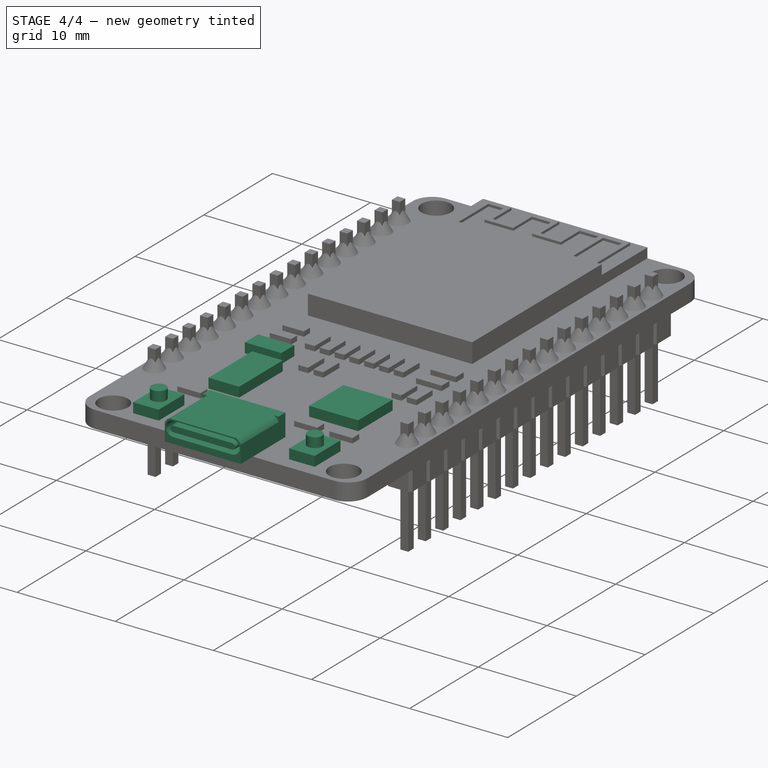
[diagram: stage 4 of 4 — iso view after this stage's code; geometry added in this stage tinted green]
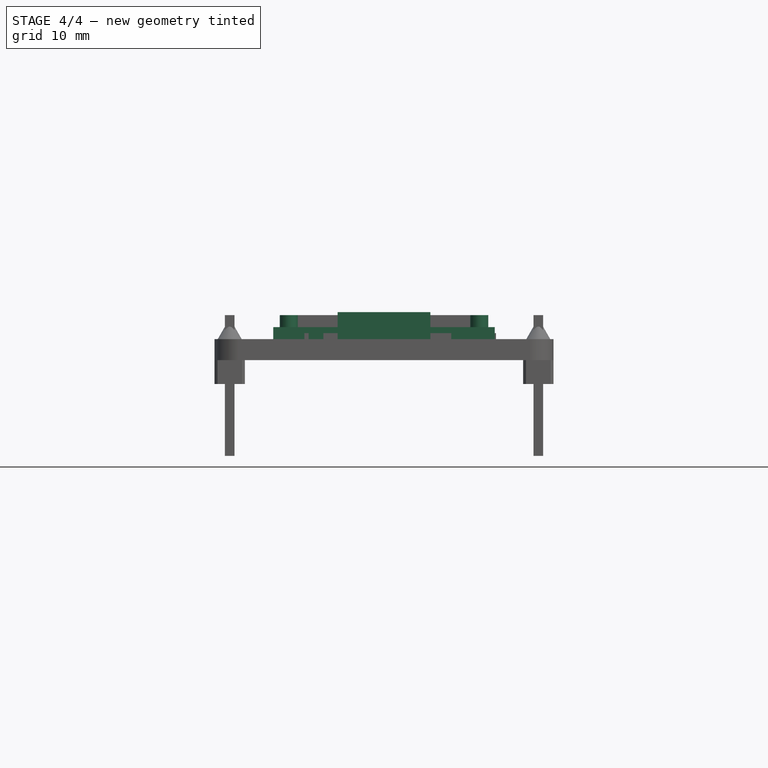
[diagram: stage 4 of 4 — front view after this stage's code; geometry added in this stage tinted green]
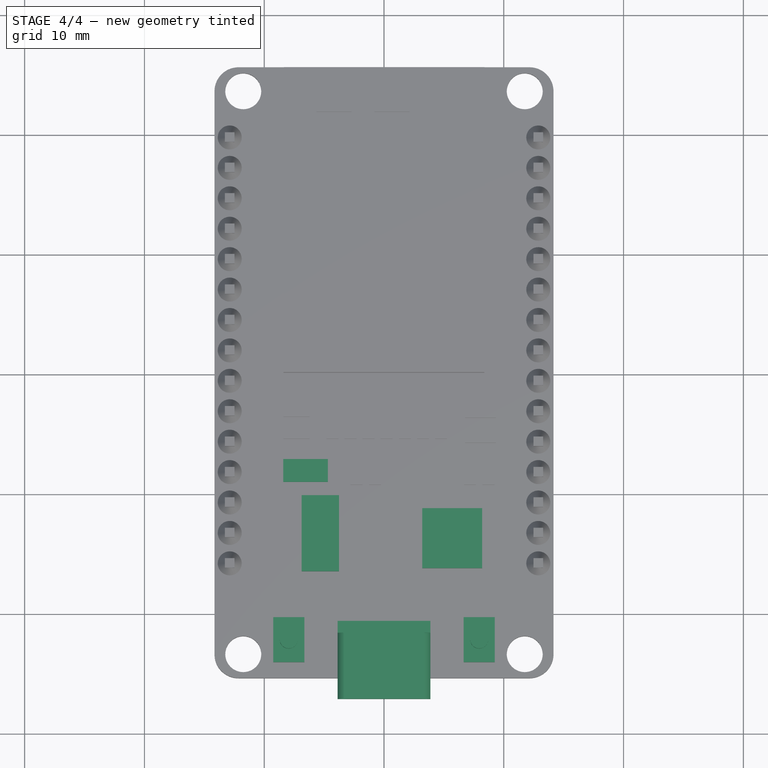
[diagram: stage 4 of 4 — top view after this stage's code; geometry added in this stage tinted green]
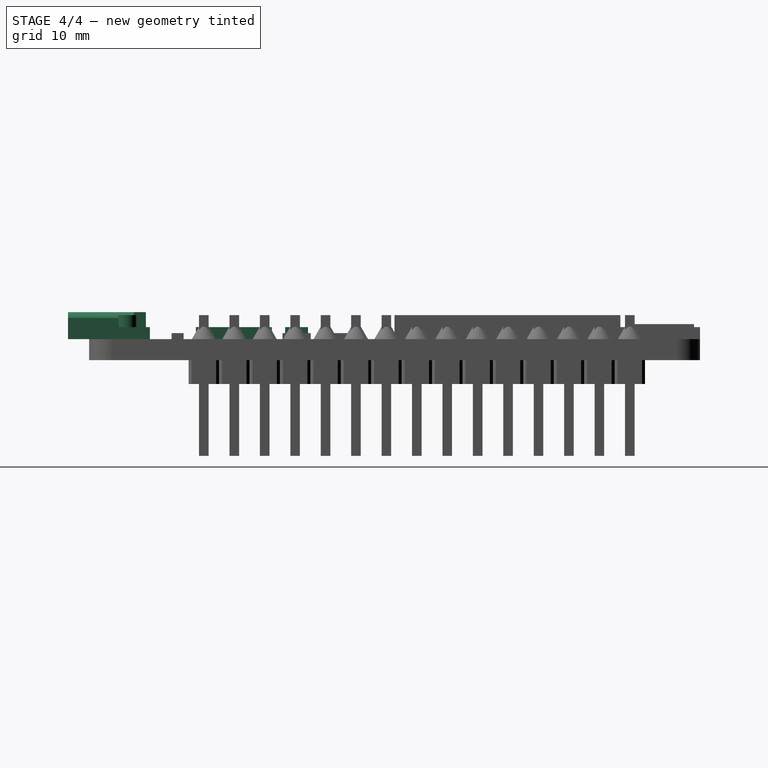
[diagram: stage 4 of 4 — right view after this stage's code; geometry added in this stage tinted green]
FEATURE [Sketcher::SketchObject] Sketch010
  ArcFitTolerance = 1e-06
  AttachmentSupport = -> [Pad006]
  FullyConstrained = true
  MakeInternals = false
  MapMode = 5
  Placement = pos=(0,0,1.75) rot=(0,0,1;0rad)
  sketch-geometry (22):
    g0: LineSegment StartX=-8.41 StartY=-7.22 StartZ=0 EndX=-8.41 EndY=-9.13 EndZ=0
    g1: LineSegment StartX=-8.41 StartY=-9.13 StartZ=0 EndX=-4.69 EndY=-9.13 EndZ=0
    g2: LineSegment StartX=-4.69 StartY=-9.13 StartZ=0 EndX=-4.69 EndY=-7.22 EndZ=0
    g3: LineSegment StartX=-4.69 StartY=-7.22 StartZ=0 EndX=-8.41 EndY=-7.22 EndZ=0
    g4: LineSegment StartX=-6.88 StartY=-10.24 StartZ=0 EndX=-6.88 EndY=-16.59 EndZ=0
    g5: LineSegment StartX=-6.88 StartY=-16.59 StartZ=0 EndX=-3.76 EndY=-16.59 EndZ=0
    g6: LineSegment StartX=-3.76 StartY=-16.59 StartZ=0 EndX=-3.76 EndY=-10.24 EndZ=0
    g7: LineSegment StartX=-3.76 StartY=-10.24 StartZ=0 EndX=-6.88 EndY=-10.24 EndZ=0
    g8: LineSegment StartX=3.19 StartY=-11.33 StartZ=0 EndX=3.19 EndY=-16.33 EndZ=0
    g9: LineSegment StartX=3.19 StartY=-16.33 StartZ=0 EndX=8.19 EndY=-16.33 EndZ=0
    g10: LineSegment StartX=8.19 StartY=-16.33 StartZ=0 EndX=8.19 EndY=-11.33 EndZ=0
    g11: LineSegment StartX=8.19 StartY=-11.33 StartZ=0 EndX=3.19 EndY=-11.33 EndZ=0
    g12: LineSegment StartX=-9.25 StartY=-20.43 StartZ=0 EndX=-9.25 EndY=-24.18 EndZ=0
    g13: LineSegment StartX=-9.25 StartY=-24.18 StartZ=0 EndX=-6.65 EndY=-24.18 EndZ=0
    g14: LineSegment StartX=-6.65 StartY=-24.18 StartZ=0 EndX=-6.65 EndY=-20.43 EndZ=0
    g15: LineSegment StartX=-6.65 StartY=-20.43 StartZ=0 EndX=-9.25 EndY=-20.43 EndZ=0
    g16: LineSegment StartX=6.65 StartY=-20.43 StartZ=0 EndX=6.65 EndY=-24.18 EndZ=0
    g17: LineSegment StartX=6.65 StartY=-24.18 StartZ=0 EndX=9.25 EndY=-24.18 EndZ=0
    g18: LineSegment StartX=9.25 StartY=-24.18 StartZ=0 EndX=9.25 EndY=-20.43 EndZ=0
    g19: LineSegment StartX=9.25 StartY=-20.43 StartZ=0 EndX=6.65 EndY=-20.43 EndZ=0
    g20: LineSegment [constr] StartX=-6.65 StartY=-24.18 StartZ=0 EndX=6.65 EndY=-24.18 EndZ=0
    g21: GeomPoint [constr] X=0 Y=-24.18 Z=0
  constraints (63):
    c: Coincident(g0,g1)
    c: Coincident(g1,g2)
    c: Coincident(g2,g3)
    c: Coincident(g3,g0)
    c: Vertical(g0)
    c: Vertical(g2)
    c: Horizontal(g1)
    c: Horizontal(g3)
    c: Coincident(g4,g5)
    c: Coincident(g5,g6)
    c: Coincident(g6,g7)
    c: Coincident(g7,g4)
    c: Vertical(g4)
    c: Vertical(g6)
    c: Horizontal(g5)
    c: Horizontal(g7)
    c: Coincident(g8,g9)
    c: Coincident(g9,g10)
    c: Coincident(g10,g11)
    c: Coincident(g11,g8)
    c: Vertical(g8)
    c: Vertical(g10)
    c: Horizontal(g9)
    c: Horizontal(g11)
    c: Equal(g10,g9)
    c: DistanceX(g8) = 3.19
    c: DistanceY(g8) = -11.33
    c: DistanceY(g6,g6) = 6.35
    c: DistanceX(g9,g9) = 5
    c: DistanceX(g5,g5) = 3.12
    c: DistanceX(g5) = -3.76
    c: DistanceY(g4,g1) = 1.11
    c: DistanceY(g2,g2) = 1.91
    c: DistanceX(g3,g3) = 3.72
    c: DistanceX(g0,g4) = 1.53
    c: DistanceY(g2) = -7.22
    c: Coincident(g12,g13)
    c: Coincident(g13,g14)
    c: Coincident(g14,g15)
    c: Coincident(g15,g12)
    c: Vertical(g12)
    c: Vertical(g14)
    c: Horizontal(g13)
    c: Horizontal(g15)
    c: Coincident(g16,g17)
    c: Coincident(g17,g18)
    c: Coincident(g18,g19)
    c: Coincident(g19,g16)
    c: Vertical(g16)
    c: Vertical(g18)
    c: Horizontal(g17)
    c: Horizontal(g19)
    c: Equal(g19,g15)
    c: Equal(g14,g16)
    c: Horizontal(g16,g14)
    c: DistanceX(g15,g15) = 2.6
    c: DistanceY(g16,g16) = 3.75
    c: Coincident(g20,g16)
    c: Symmetric(g20,g20,g21)
    c: PointOnObject(g21,g-2)
    c: DistanceX(g20,g21) = 6.65
    c: DistanceY(g21) = -24.18
    c: Coincident(g13,g20)
FEATURE [PartDesign::Pad] Pad007  label="Electronics5Pad"
  BaseFeature = -> Pad006
  Direction = (0,0,1)
  Length = 1
  Length2 = 10
  Profile = -> Sketch010
  ReferenceAxis = -> Sketch010 [N_Axis]
  Refine = true
  Suppressed = false
  Type = 0
FEATURE [Sketcher::SketchObject] Sketch011
  ArcFitTolerance = 1e-06
  AttachmentSupport = -> [Pad007]
  ExternalGeometry = -> [Pad007]
  FullyConstrained = true
  MakeInternals = false
  MapMode = 5
  Placement = pos=(0,0,2.75) rot=(0,0,1;0rad)
  sketch-geometry (5):
    g0: GeomPoint [constr] X=7.95 Y=-20.43 Z=0
    g1: GeomPoint [constr] X=9.25 Y=-22.305 Z=0
    g2: GeomPoint [constr] X=-7.95 Y=-20.43 Z=0
    g3: Circle CenterX=-7.95 CenterY=-22.305 CenterZ=0 NormalX=0 NormalY=0 NormalZ=1 AngleXU=0 Radius=0.75
    g4: Circle CenterX=7.95 CenterY=-22.305 CenterZ=0 NormalX=0 NormalY=0 NormalZ=1 AngleXU=0 Radius=0.75
  constraints (9):
    c: Symmetric(g-5,g-5,g0)
    c: Symmetric(g-6,g-6,g1)
    c: Vertical(g3,g2)
    c: Vertical(g4,g0)
    c: Horizontal(g3,g4)
    c: Horizontal(g4,g1)
    c: Equal(g4,g3)
    c: Radius(g4) = 0.75
    c: Symmetric(g-4,g-4,g2)
FEATURE [PartDesign::Pad] Pad008  label="Electronics6Pad"
  BaseFeature = -> Pad007
  Direction = (0,0,1)
  Length = 1
  Length2 = 10
  Profile = -> Sketch011
  ReferenceAxis = -> Sketch011 [N_Axis]
  Refine = true
  Suppressed = false
  Type = 0
FEATURE [Sketcher::SketchObject] Sketch012
  ArcFitTolerance = 1e-06
  AttachmentSupport = -> [Pad008]
  FullyConstrained = true
  MakeInternals = false
  MapMode = 5
  Placement = pos=(0,0,1.75) rot=(0,0,1;0rad)
  sketch-geometry (4):
    g0: LineSegment StartX=-3.875 StartY=-20.76 StartZ=0 EndX=-3.875 EndY=-27.26 EndZ=0
    g1: LineSegment StartX=-3.875 StartY=-27.26 StartZ=0 EndX=3.875 EndY=-27.26 EndZ=0
    g2: LineSegment StartX=3.875 StartY=-27.26 StartZ=0 EndX=3.875 EndY=-20.76 EndZ=0
    g3: LineSegment StartX=3.875 StartY=-20.76 StartZ=0 EndX=-3.875 EndY=-20.76 EndZ=0
  constraints (11):
    c: Coincident(g0,g1)
    c: Coincident(g1,g2)
    c: Coincident(g2,g3)
    c: Coincident(g3,g0)
    c: Vertical(g0)
    c: Vertical(g2)
    c: Horizontal(g1)
    c: DistanceY(g2,g2) = 6.5
    c: DistanceX(g1,g1) = 7.75
    c: Symmetric(g0,g2,g-2)
    c: DistanceY(g2) = -20.76
FEATURE [PartDesign::Pad] Pad009  label="USBCPad"
  BaseFeature = -> Pad008
  Direction = (0,0,1)
  Length = 2.26
  Length2 = 10
  Profile = -> Sketch012
  ReferenceAxis = -> Sketch012 [N_Axis]
  Refine = true
  Suppressed = false
  Type = 0
FEATURE [Sketcher::SketchObject] Sketch013
  ArcFitTolerance = 1e-06
  AttachmentSupport = -> [Pad009]
  ExternalGeometry = -> [Pad009]
  FullyConstrained = false
  MakeInternals = false
  MapMode = 5
  Placement = pos=(0,-27.26,0) rot=(1,0,0;1.5708rad)
  sketch-geometry (16):
    g0: ArcOfCircle CenterX=-3 CenterY=3.135 CenterZ=0 NormalX=0 NormalY=0 NormalZ=1 AngleXU=0 Radius=0.3 StartAngle=1.5708 EndAngle=4.71239
    g1: ArcOfCircle CenterX=3 CenterY=3.135 CenterZ=0 NormalX=0 NormalY=0 NormalZ=1 AngleXU=0 Radius=0.3 StartAngle=4.71239 EndAngle=7.85398
    g2: LineSegment StartX=-3 StartY=3.435 StartZ=0 EndX=3 EndY=3.435 EndZ=0
    g3: LineSegment StartX=-3 StartY=2.835 StartZ=0 EndX=3 EndY=2.835 EndZ=0
    g4: GeomPoint X=3.3 Y=3.135 Z=0
    g5: GeomPoint X=-3.3 Y=3.135 Z=0
    g6: ArcOfCircle CenterX=3 CenterY=3.135 CenterZ=0 NormalX=0 NormalY=0 NormalZ=1 AngleXU=0 Radius=0.75 StartAngle=4.71239 EndAngle=7.85398
    g7: ArcOfCircle CenterX=-3 CenterY=3.135 CenterZ=0 NormalX=0 NormalY=0 NormalZ=1 AngleXU=0 Radius=0.75 StartAngle=1.5708 EndAngle=4.71239
    g8: LineSegment StartX=3 StartY=2.385 StartZ=0 EndX=-3 EndY=2.385 EndZ=0
    g9: LineSegment StartX=3 StartY=3.885 StartZ=0 EndX=-3 EndY=3.885 EndZ=0
    g10: ArcOfCircle CenterX=-3 CenterY=3.135 CenterZ=0 NormalX=0 NormalY=0 NormalZ=1 AngleXU=0 Radius=0.951972 StartAngle=1.97569 EndAngle=2.7367
    g11: LineSegment StartX=-3.875 StartY=3.51 StartZ=0 EndX=-3.875 EndY=4.01 EndZ=0
    g12: LineSegment StartX=-3.375 StartY=4.01 StartZ=0 EndX=-3.875 EndY=4.01 EndZ=0
    g13: LineSegment StartX=3.875 StartY=3.51 StartZ=0 EndX=3.875 EndY=4.01 EndZ=0
    g14: LineSegment StartX=3.375 StartY=4.01 StartZ=0 EndX=3.875 EndY=4.01 EndZ=0
    g15: ArcOfCircle CenterX=3 CenterY=3.135 CenterZ=0 NormalX=0 NormalY=0 NormalZ=1 AngleXU=0 Radius=0.951972 StartAngle=0.404892 EndAngle=1.1659
  constraints (33):
    c: Tangent(g0,g2) = 1.5708
    c: Tangent(g0,g3) = -1.5708
    c: Tangent(g1,g2) = 1.5708
    c: Tangent(g1,g3) = -1.5708
    c: Equal(g0,g1)
    c: DistanceY(g1,g1) = 0.6
    c: PointOnObject(g4,g1)
    c: PointOnObject(g5,g0)
    c: Horizontal(g4,g1)
    c: Horizontal(g1,g5)
    c: DistanceX(g5,g4) = 6.6
    c: Symmetric(g1,g0,g-2)
    c: Tangent(g6,g8) = 1.5708
    c: Tangent(g6,g9) = -1.5708
    c: Tangent(g7,g8) = 1.5708
    c: Tangent(g7,g9) = -1.5708
    c: Equal(g6,g7)
    c: Coincident(g6,g1)
    c: Coincident(g7,g0)
    c: DistanceY(g7,g7) = 1.5
    c: PointOnObject(g10,g-5)
    c: PointOnObject(g10,g-3)
    c: Coincident(g11,g10)
    c: Coincident(g11,g-5)
    c: Coincident(g12,g10)
    c: Coincident(g12,g11)
    c: Equal(g11,g12)
    c: Coincident(g10,g0)
    c: DistanceY(g11,g11) = 0.5
    c: Coincident(g13,g15)
    c: Coincident(g14,g15)
    c: Coincident(g14,g13)
    c: Equal(g13,g14)
FEATURE [PartDesign::Pocket] Pocket001  label="USBCPocket"
  BaseFeature = -> Pad009
  Direction = (0,1,-2e-16)
  Length = 5.5
  Length2 = 5
  Profile = -> Sketch013
  ReferenceAxis = -> Sketch013 [N_Axis]
  Refine = true
  Suppressed = false
  Type = 0
FEATURE [PartDesign::Body] Body  label="esp32"
  AllowCompound = false
  Group = -> [Sketch,Pad,Sketch001,Pocket,Sketch002,Pad001,Sketch003,DatumPlane,Sketch004,DatumLine,Revolution,Sketch005,Pad002,MultiTransform,LinearPattern,Mirrored,Sketch006,Pad003,Sketch007,Pad004,Sketch008,Pad005,Sketch009,Pad006,Sketch010,Pad007,Sketch011,Pad008,Sketch012,Pad009,Sketch013,Pocket001]
  Origin = -> Origin
  Tip = -> Pocket001
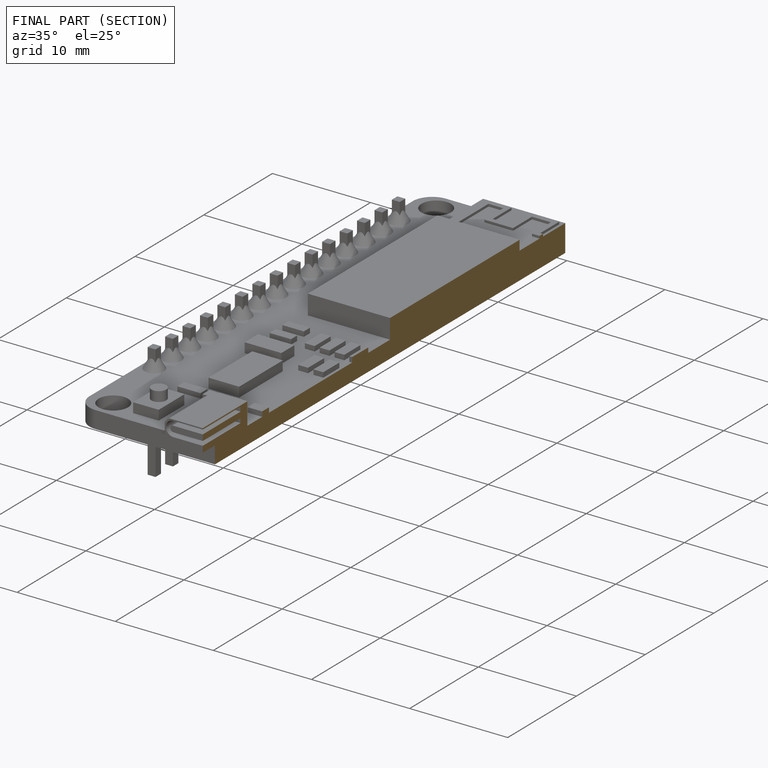
[diagram: finished part — half-section view (interior)]
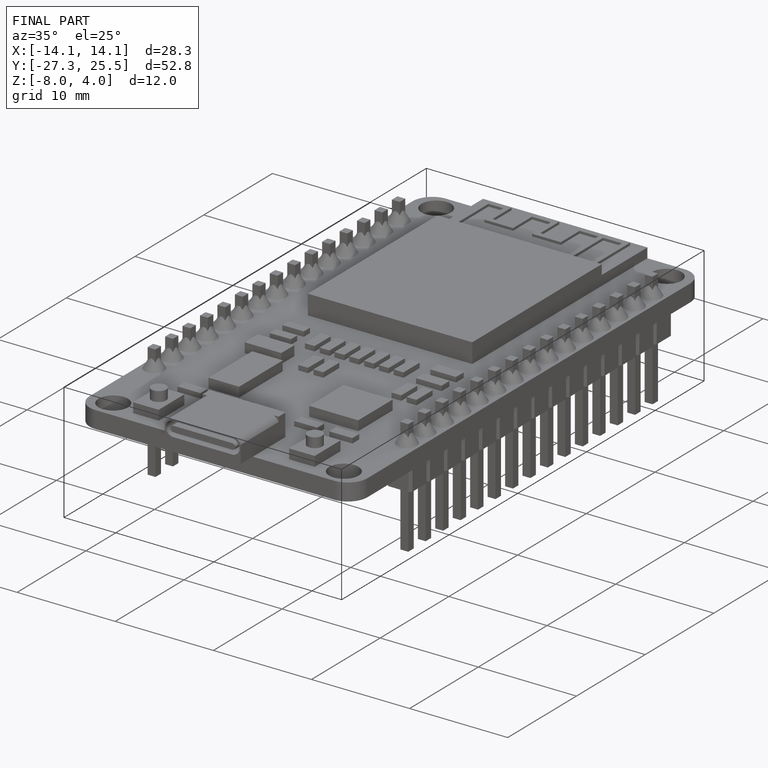
[diagram: finished part — iso view with bounding-box wireframe]
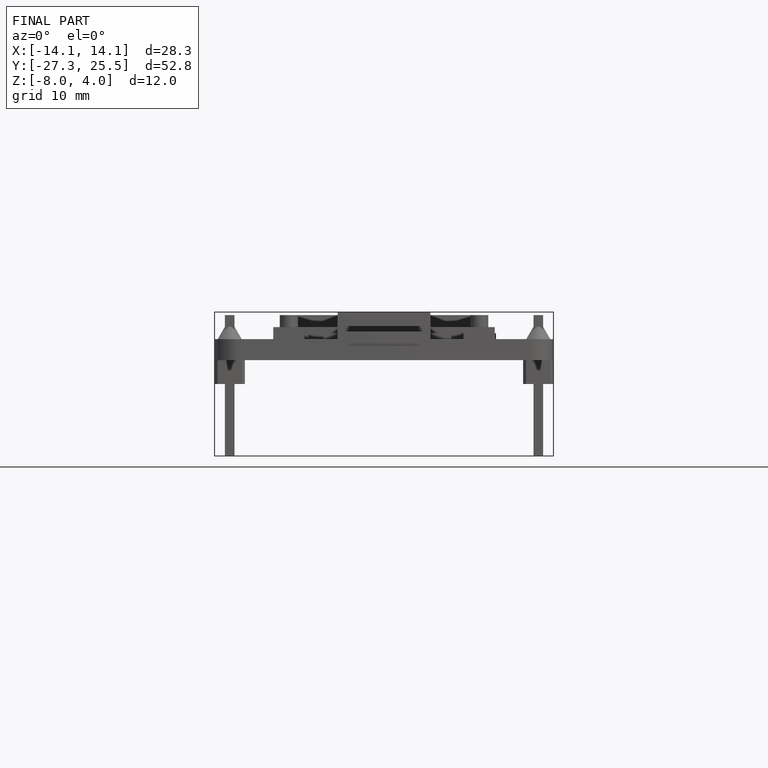
[diagram: finished part — front view with bounding-box wireframe]
